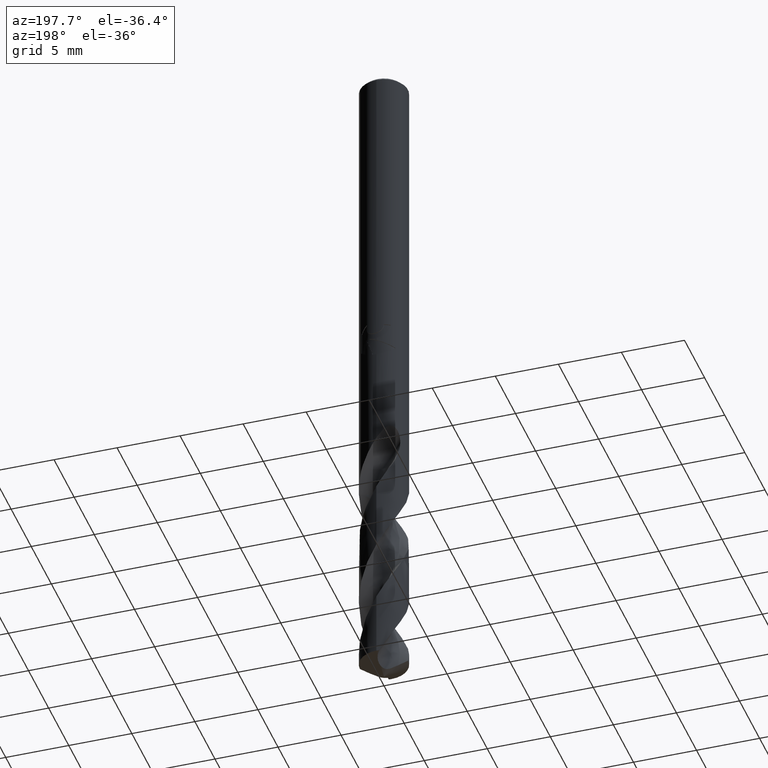
[diagram: clean part render]
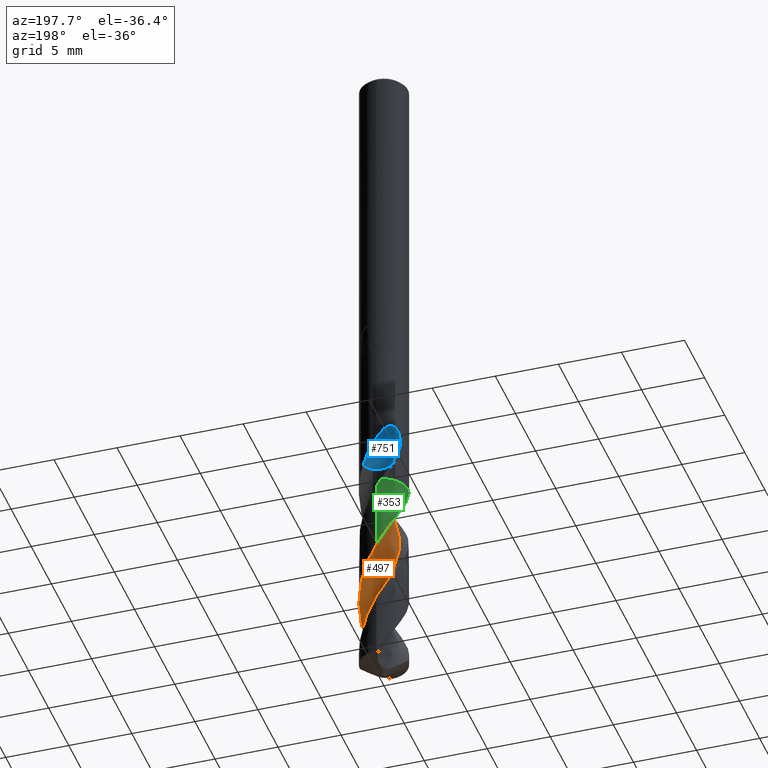
[diagram: same view with three faces highlighted in distinct colors, each labeled with its STEP entity id]
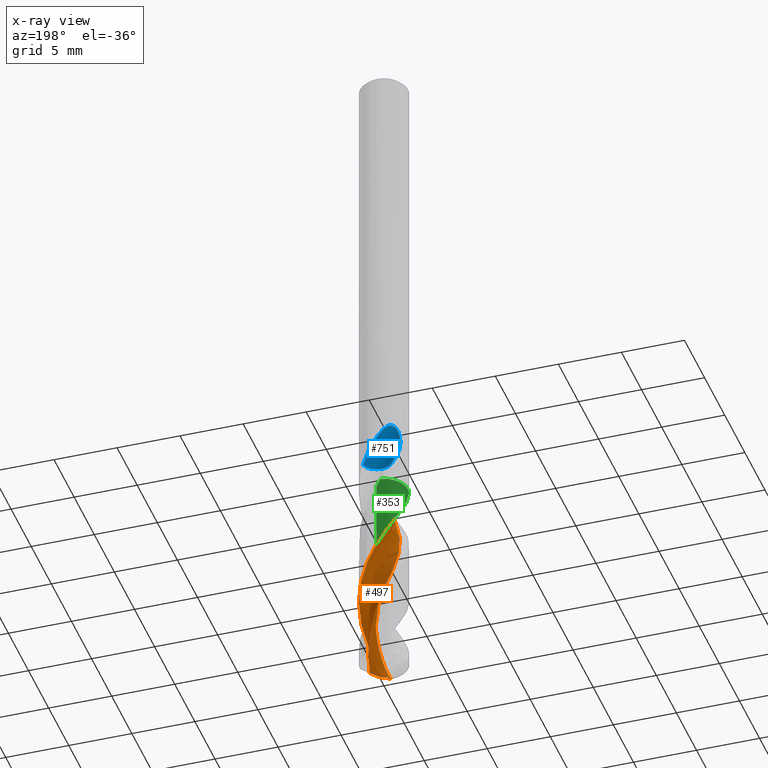
[diagram: x-ray of the same camera — body ghosted, the three highlighted faces saturated]
A machine part, auxiliary view with three faces highlighted in distinct colors.
The next image is the same camera in x-ray (body ghosted, the three faces saturated) — at least one of them is partly hidden behind the body in this view.
Their STEP definitions:

[orange] entity #497 — the highlighted face is a freeform B-spline surface patch.
#315=EDGE_CURVE('',#475,#341,#834,.T.);
#325=EDGE_CURVE('',#341,#715,#846,.T.);
#341=VERTEX_POINT('',#863);
#421=EDGE_CURVE('',#715,#745,#949,.T.);
#473=EDGE_CURVE('',#671,#475,#1005,.T.);
#475=VERTEX_POINT('',#1007);
#497=ADVANCED_FACE('',(#1033),#1034,.F.);
#595=VERTEX_POINT('',#1142);
#635=EDGE_CURVE('',#745,#721,#1187,.T.);
#671=VERTEX_POINT('',#1225);
#703=EDGE_CURVE('',#721,#595,#1259,.T.);
#715=VERTEX_POINT('',#1271);
#721=VERTEX_POINT('',#1278);
#745=VERTEX_POINT('',#1303);
#755=EDGE_CURVE('',#595,#671,#1314,.T.);
#834=B_SPLINE_CURVE_WITH_KNOTS('',3,(#2047,#2048,#2049,#2050,#2051,#2052,#2053,#2054,#2055,#2056,#2057,#2058,#2059,#2060,#2061,#2062,#2063,#2064,#2065,#2066,#2067,#2068),.UNSPECIFIED.,.F.,.F.,(4,2,2,2,2,2,2,2,2,2,4),(0.0,0.648995555786065,1.28108701576647,1.78660065546343,2.23669466562125,2.8115457183891,3.49005096596948,4.29610604498163,5.17115226037781,5.79731108288181,6.4193822084432),.UNSPECIFIED.);
#846=B_SPLINE_CURVE_WITH_KNOTS('',3,(#2085,#2086,#2087,#2088,#2089,#2090,#2091,#2092,#2093,#2094,#2095,#2096,#2097,#2098,#2099,#2100,#2101,#2102,#2103,#2104,#2105,#2106),.UNSPECIFIED.,.F.,.F.,(4,2,2,2,2,2,2,2,2,2,4),(0.0,0.648995555786065,1.28108701576647,1.78660065546343,2.23669466562125,2.8115457183891,3.49005096596948,4.29610604498163,5.17115226037781,5.79731108288181,6.4193822084432),.UNSPECIFIED.);
#863=CARTESIAN_POINT('',(1.63419041853947E-010,-1.58109835874864,-54.0499802614188));
#949=B_SPLINE_CURVE_WITH_KNOTS('',3,(#2977,#2978,#2979,#2980,#2981,#2982,#2983,#2984,#2985,#2986,#2987,#2988,#2989,#2990,#2991,#2992,#2993,#2994,#2995,#2996,#2997,#2998,#2999,#3000,#3001,#3002,#3003,#3004,#3005,#3006,#3007,#3008,#3009,#3010,#3011,#3012,#3013,#3014,#3015,#3016,#3017,#3018,#3019,#3020,#3021,#3022,#3023,#3024,#3025,#3026,#3027,#3028,#3029,#3030,#3031,#3032,#3033,#3034,#3035,#3036),.UNSPECIFIED.,.F.,.F.,(4,2,2,2,2,2,2,2,2,2,2,2,2,2,2,2,2,2,2,2,2,2,2,2,2,2,2,2,2,4),(0.0,0.170670605389074,0.852774257800548,1.19695858135245,1.8795934643111,2.56694814830175,3.24820844732213,3.93499056871376,4.61614547838824,5.30261512883003,5.98375213660271,6.71904365405354,7.04014812854611,7.71368537013039,8.08207039547673,8.72869355211635,9.41590151243351,10.0982130426988,10.7852308905936,11.4675647025436,12.1544266867432,12.8122777381498,13.5485010010752,14.1595007630117,14.6978058392708,15.5763403315261,16.3000819395205,16.8412240364562,17.6570362311026,18.4703976171029),.UNSPECIFIED.);
#1005=B_SPLINE_CURVE_WITH_KNOTS('',3,(#3286,#3287,#3288,#3289,#3290,#3291,#3292,#3293,#3294,#3295,#3296,#3297,#3298,#3299,#3300,#3301,#3302,#3303,#3304,#3305,#3306,#3307),.UNSPECIFIED.,.F.,.F.,(4,2,2,2,2,2,2,2,2,2,4),(0.0,0.648995555786065,1.28108701576647,1.78660065546343,2.23669466562125,2.8115457183891,3.49005096596948,4.29610604498163,5.17115226037781,5.79731108288181,6.4193822084432),.UNSPECIFIED.);
#1007=CARTESIAN_POINT('',(1.05684834083642E-011,-0.790333191509,-54.5251199093119));
#1033=FACE_OUTER_BOUND('',#3349,.T.);
#1034=B_SPLINE_SURFACE_WITH_KNOTS('',3,3,((#3350,#3351,#3352,#3353,#3354,#3355,#3356,#3357,#3358,#3359,#3360,#3361,#3362,#3363,#3364,#3365,#3366,#3367,#3368,#3369,#3370,#3371,#3372,#3373,#3374,#3375,#3376,#3377,#3378,#3379,#3380,#3381,#3382,#3383,#3384,#3385,#3386),(#3387,#3388,#3389,#3390,#3391,#3392,#3393,#3394,#3395,#3396,#3397,#3398,#3399,#3400,#3401,#3402,#3403,#3404,#3405,#3406,#3407,#3408,#3409,#3410,#3411,#3412,#3413,#3414,#3415,#3416,#3417,#3418,#3419,#3420,#3421,#3422,#3423),(#3424,#3425,#3426,#3427,#3428,#3429,#3430,#3431,#3432,#3433,#3434,#3435,#3436,#3437,#3438,#3439,#3440,#3441,#3442,#3443,#3444,#3445,#3446,#3447,#3448,#3449,#3450,#3451,#3452,#3453,#3454,#3455,#3456,#3457,#3458,#3459,#3460),(#3461,#3462,#3463,#3464,#3465,#3466,#3467,#3468,#3469,#3470,#3471,#3472,#3473,#3474,#3475,#3476,#3477,#3478,#3479,#3480,#3481,#3482,#3483,#3484,#3485,#3486,#3487,#3488,#3489,#3490,#3491,#3492,#3493,#3494,#3495,#3496,#3497),(#3498,#3499,#3500,#3501,#3502,#3503,#3504,#3505,#3506,#3507,#3508,#3509,#3510,#3511,#3512,#3513,#3514,#3515,#3516,#3517,#3518,#3519,#3520,#3521,#3522,#3523,#3524,#3525,#3526,#3527,#3528,#3529,#3530,#3531,#3532,#3533,#3534),(#3535,#3536,#3537,#3538,#3539,#3540,#3541,#3542,#3543,#3544,#3545,#3546,#3547,#3548,#3549,#3550,#3551,#3552,#3553,#3554,#3555,#3556,#3557,#3558,#3559,#3560,#3561,#3562,#3563,#3564,#3565,#3566,#3567,#3568,#3569,#3570,#3571),(#3572,#3573,#3574,#3575,#3576,#3577,#3578,#3579,#3580,#3581,#3582,#3583,#3584,#3585,#3586,#3587,#3588,#3589,#3590,#3591,#3592,#3593,#3594,#3595,#3596,#3597,#3598,#3599,#3600,#3601,#3602,#3603,#3604,#3605,#3606,#3607,#3608),(#3609,#3610,#3611,#3612,#3613,#3614,#3615,#3616,#3617,#3618,#3619,#3620,#3621,#3622,#3623,#3624,#3625,#3626,#3627,#3628,#3629,#3630,#3631,#3632,#3633,#3634,#3635,#3636,#3637,#3638,#3639,#3640,#3641,#3642,#3643,#3644,#3645),(#3646,#3647,#3648,#3649,#3650,#3651,#3652,#3653,#3654,#3655,#3656,#3657,#3658,#3659,#3660,#3661,#3662,#3663,#3664,#3665,#3666,#3667,#3668,#3669,#3670,#3671,#3672,#3673,#3674,#3675,#3676,#3677,#3678,#3679,#3680,#3681,#3682),(#3683,#3684,#3685,#3686,#3687,#3688,#3689,#3690,#3691,#3692,#3693,#3694,#3695,#3696,#3697,#3698,#3699,#3700,#3701,#3702,#3703,#3704,#3705,#3706,#3707,#3708,#3709,#3710,#3711,#3712,#3713,#3714,#3715,#3716,#3717,#3718,#3719),(#3720,#3721,#3722,#3723,#3724,#3725,#3726,#3727,#3728,#3729,#3730,#3731,#3732,#3733,#3734,#3735,#3736,#3737,#3738,#3739,#3740,#3741,#3742,#3743,#3744,#3745,#3746,#3747,#3748,#3749,#3750,#3751,#3752,#3753,#3754,#3755,#3756)),.UNSPECIFIED.,.F.,.F.,.F.,(4,1,1,1,1,1,1,1,4),(4,1,2,2,2,2,2,2,2,2,2,2,2,2,2,2,2,2,4),(9.52172959878501E-018,0.392702223103158,0.785404446206316,1.17810666930947,1.57080889241263,1.96351111551579,2.35621333861895,2.7489155617221,3.14161778482526),(0.0,0.383837207719708,0.767674415439416,1.53534883087883,3.07069766175766,4.60604649263649,6.14139532351532,7.67674415439415,9.21209298527299,10.7474418161518,12.2827906470306,13.8181394779095,15.3534883087883,16.8888371396671,18.424185970546,19.9595348014248,21.4948836323036,23.0302324631825,24.5655812940613),.UNSPECIFIED.);
#1142=CARTESIAN_POINT('',(0.170684274680195,-1.18356031584998,-37.805));
#1187=B_SPLINE_CURVE_WITH_KNOTS('',3,(#5844,#5845,#5846,#5847,#5848,#5849,#5850,#5851,#5852,#5853,#5854,#5855,#5856,#5857,#5858,#5859,#5860,#5861,#5862,#5863,#5864,#5865,#5866,#5867,#5868,#5869,#5870,#5871,#5872,#5873,#5874,#5875,#5876,#5877,#5878,#5879,#5880,#5881,#5882,#5883,#5884,#5885,#5886,#5887,#5888,#5889,#5890,#5891,#5892,#5893,#5894,#5895,#5896,#5897,#5898,#5899,#5900,#5901,#5902,#5903),.UNSPECIFIED.,.F.,.F.,(4,2,2,2,2,2,2,2,2,2,2,2,2,2,2,2,2,2,2,2,2,2,2,2,2,2,2,2,2,4),(0.0,0.170670605389074,0.852774257800548,1.19695858135245,1.8795934643111,2.56694814830175,3.24820844732213,3.93499056871376,4.61614547838824,5.30261512883003,5.98375213660271,6.71904365405354,7.04014812854611,7.71368537013039,8.08207039547673,8.72869355211635,9.41590151243351,10.0982130426988,10.7852308905936,11.4675647025436,12.1544266867432,12.8122777381498,13.5485010010752,14.1595007630117,14.6978058392708,15.5763403315261,16.3000819395205,16.8412240364562,17.6570362311026,18.4703976171029),.UNSPECIFIED.);
#1225=CARTESIAN_POINT('',(1.18596829223322,-0.169958667569456,-54.2801181380363));
#1259=B_SPLINE_CURVE_WITH_KNOTS('',3,(#6955,#6956,#6957,#6958,#6959,#6960,#6961,#6962,#6963,#6964,#6965,#6966,#6967,#6968,#6969,#6970,#6971,#6972,#6973,#6974),.UNSPECIFIED.,.F.,.F.,(4,2,2,2,2,2,2,2,2,4),(-3.9903097021408,-3.72646138403212,-3.46257304093479,-2.96757095189307,-2.47261435464062,-1.97786782331094,-1.48337325208529,-0.989023718243147,-0.494623482687413,-0.0),.UNSPECIFIED.);
#1271=CARTESIAN_POINT('',(0.212324220288702,-1.88809915668611,-53.8583648238476));
#1278=CARTESIAN_POINT('',(-1.83101245964173,-0.506964996111962,-37.805));
#1303=CARTESIAN_POINT('',(8.82841414939718E-016,1.89993781193416,-43.8719783339416));
#1314=B_SPLINE_CURVE_WITH_KNOTS('',3,(#7142,#7143,#7144,#7145,#7146,#7147,#7148,#7149,#7150,#7151,#7152,#7153,#7154,#7155,#7156,#7157,#7158,#7159,#7160,#7161,#7162,#7163,#7164,#7165,#7166,#7167,#7168,#7169,#7170,#7171,#7172,#7173,#7174,#7175,#7176,#7177,#7178),.UNSPECIFIED.,.F.,.F.,(4,1,2,2,2,2,2,2,2,2,2,2,2,2,2,2,2,2,4),(0.0,0.383837207719708,0.767674415439416,1.53534883087883,3.07069766175766,4.60604649263649,6.14139532351532,7.67674415439415,9.21209298527299,10.7474418161518,12.2827906470306,13.8181394779095,15.3534883087883,16.8888371396671,18.424185970546,19.9595348014248,21.4948836323036,23.0302324631825,24.5655812940613),.UNSPECIFIED.);
#2047=CARTESIAN_POINT('',(1.18596829222733,-0.169958667576496,-54.2801181380498));
#2048=CARTESIAN_POINT('',(1.00100612259739,-0.203119162287422,-54.3873041798426));
#2049=CARTESIAN_POINT('',(0.827145849565822,-0.253281212814921,-54.4844216841692));
#2050=CARTESIAN_POINT('',(0.536399405229499,-0.359633953199625,-54.6173142999266));
#2051=CARTESIAN_POINT('',(0.439054099551961,-0.406737631669641,-54.6439384836557));
#2052=CARTESIAN_POINT('',(0.30501303784116,-0.481358144725257,-54.6599786973714));
#2053=CARTESIAN_POINT('',(0.240061751581404,-0.52199967216929,-54.6580019696554));
#2054=CARTESIAN_POINT('',(0.117218744789877,-0.627694848081033,-54.6186224919089));
#2055=CARTESIAN_POINT('',(0.0686841183559738,-0.682520998228677,-54.5885779314658));
#2056=CARTESIAN_POINT('',(-0.0201607251750705,-0.816815885367484,-54.5100842143662));
#2057=CARTESIAN_POINT('',(-0.0593365021343477,-0.906133870725885,-54.4544251390869));
#2058=CARTESIAN_POINT('',(-0.104278941525389,-1.12921873065831,-54.3186673275364));
#2059=CARTESIAN_POINT('',(-0.100126243026824,-1.25423890472516,-54.2442641870293));
#2060=CARTESIAN_POINT('',(-0.0384039895409496,-1.52015748469137,-54.0866380378282));
#2061=CARTESIAN_POINT('',(0.0284944207175492,-1.65760673955608,-54.0051350275109));
#2062=CARTESIAN_POINT('',(0.220962019805863,-1.91310460543298,-53.8441400876809));
#2063=CARTESIAN_POINT('',(0.355600640924017,-2.0347623245261,-53.7617174355137));
#2064=CARTESIAN_POINT('',(0.643482975869421,-2.19953488918566,-53.6243072246574));
#2065=CARTESIAN_POINT('',(0.774453513153667,-2.25158560189739,-53.5709832783639));
#2066=CARTESIAN_POINT('',(1.0480043709358,-2.31956004471367,-53.4721520853469));
#2067=CARTESIAN_POINT('',(1.1898720775729,-2.33556395148074,-53.4268306326727));
#2068=CARTESIAN_POINT('',(1.33286337197628,-2.33312563563216,-53.3854840506031));
#2085=CARTESIAN_POINT('',(1.18596829222733,-0.169958667576496,-54.2801181380498));
#2086=CARTESIAN_POINT('',(1.00100612259739,-0.203119162287422,-54.3873041798426));
#2087=CARTESIAN_POINT('',(0.827145849565822,-0.253281212814921,-54.4844216841692));
#2088=CARTESIAN_POINT('',(0.536399405229499,-0.359633953199625,-54.6173142999266));
#2089=CARTESIAN_POINT('',(0.439054099551961,-0.406737631669641,-54.6439384836557));
#2090=CARTESIAN_POINT('',(0.30501303784116,-0.481358144725257,-54.6599786973714));
#2091=CARTESIAN_POINT('',(0.240061751581404,-0.52199967216929,-54.6580019696554));
#2092=CARTESIAN_POINT('',(0.117218744789877,-0.627694848081033,-54.6186224919089));
#2093=CARTESIAN_POINT('',(0.0686841183559738,-0.682520998228677,-54.5885779314658));
#2094=CARTESIAN_POINT('',(-0.0201607251750705,-0.816815885367484,-54.5100842143662));
#2095=CARTESIAN_POINT('',(-0.0593365021343477,-0.906133870725885,-54.4544251390869));
#2096=CARTESIAN_POINT('',(-0.104278941525389,-1.12921873065831,-54.3186673275364));
#2097=CARTESIAN_POINT('',(-0.100126243026824,-1.25423890472516,-54.2442641870293));
#2098=CARTESIAN_POINT('',(-0.0384039895409496,-1.52015748469137,-54.0866380378282));
#2099=CARTESIAN_POINT('',(0.0284944207175492,-1.65760673955608,-54.0051350275109));
#2100=CARTESIAN_POINT('',(0.220962019805863,-1.91310460543298,-53.8441400876809));
#2101=CARTESIAN_POINT('',(0.355600640924017,-2.0347623245261,-53.7617174355137));
#2102=CARTESIAN_POINT('',(0.643482975869421,-2.19953488918566,-53.6243072246574));
#2103=CARTESIAN_POINT('',(0.774453513153667,-2.25158560189739,-53.5709832783639));
#2104=CARTESIAN_POINT('',(1.0480043709358,-2.31956004471367,-53.4721520853469));
#2105=CARTESIAN_POINT('',(1.1898720775729,-2.33556395148074,-53.4268306326727));
#2106=CARTESIAN_POINT('',(1.33286337197628,-2.33312563563216,-53.3854840506031));
#2977=CARTESIAN_POINT('',(0.212324220288704,-1.88809915668611,-53.8583648238476));
#2978=CARTESIAN_POINT('',(0.240420704532934,-1.8849392865114,-53.8089978525609));
#2979=CARTESIAN_POINT('',(0.268411805155769,-1.88115879292184,-53.7595576703096));
#2980=CARTESIAN_POINT('',(0.408497361606869,-1.85902934229855,-53.5120721226325));
#2981=CARTESIAN_POINT('',(0.51903685500338,-1.83128515159002,-53.315433514511));
#2982=CARTESIAN_POINT('',(0.68109254248057,-1.77465700271535,-53.0182647272398));
#2983=CARTESIAN_POINT('',(0.734509539005171,-1.75321933451758,-52.9187480065962));
#2984=CARTESIAN_POINT('',(0.890609334357078,-1.68219635784933,-52.6212811517244));
#2985=CARTESIAN_POINT('',(0.989983073086763,-1.62571290950974,-52.4227555191835));
#2986=CARTESIAN_POINT('',(1.17823704000143,-1.49497090867245,-52.025842011882));
#2987=CARTESIAN_POINT('',(1.26646398445852,-1.42098590010085,-51.8278453262774));
#2988=CARTESIAN_POINT('',(1.42762809605504,-1.25887564970704,-51.4311567466317));
#2989=CARTESIAN_POINT('',(1.5004896885492,-1.17109571038345,-51.2327523948512));
#2990=CARTESIAN_POINT('',(1.63027786403843,-0.982512445587693,-50.8361392014194));
#2991=CARTESIAN_POINT('',(1.68667534210086,-0.882172213379456,-50.638224589212));
#2992=CARTESIAN_POINT('',(1.7802305125851,-0.673540197715337,-50.2415461919549));
#2993=CARTESIAN_POINT('',(1.81740253284222,-0.565650138289542,-50.0431044909664));
#2994=CARTESIAN_POINT('',(1.87221987721971,-0.34336436119568,-49.646450656946));
#2995=CARTESIAN_POINT('',(1.88954153056088,-0.229577288471107,-49.4485338250866));
#2996=CARTESIAN_POINT('',(1.90338065223852,-0.00130347280225888,-49.0517977775559));
#2997=CARTESIAN_POINT('',(1.9000444183261,0.112794192863608,-48.8532859677748));
#2998=CARTESIAN_POINT('',(1.87182284500394,0.348298407064515,-48.4423306898084));
#2999=CARTESIAN_POINT('',(1.84533241999327,0.468752633647806,-48.2304475150829));
#3000=CARTESIAN_POINT('',(1.79088173639982,0.636776693076591,-47.923841870863));
#3001=CARTESIAN_POINT('',(1.77220323812463,0.687033091425265,-47.8303968950096));
#3002=CARTESIAN_POINT('',(1.70798489394986,0.839778410843935,-47.5420998998605));
#3003=CARTESIAN_POINT('',(1.65534204528288,0.939350843258449,-47.3480465157791));
#3004=CARTESIAN_POINT('',(1.56050993288496,1.0855616531926,-47.04653210332));
#3005=CARTESIAN_POINT('',(1.52452495905853,1.13553457305249,-46.9400829128366));
#3006=CARTESIAN_POINT('',(1.4190083470726,1.26802499849308,-46.6461289901269));
#3007=CARTESIAN_POINT('',(1.34468319834682,1.34660278845187,-46.4579830662696));
#3008=CARTESIAN_POINT('',(1.17818861964453,1.49495401569273,-46.0715838173575));
#3009=CARTESIAN_POINT('',(1.08568344215273,1.56341931000439,-45.8736914668217));
#3010=CARTESIAN_POINT('',(0.890250180185487,1.68233367402662,-45.4768992820044));
#3011=CARTESIAN_POINT('',(0.787772400171191,1.73269399262661,-45.2782951363152));
#3012=CARTESIAN_POINT('',(0.574027677843445,1.81479388705641,-44.8815225634958));
#3013=CARTESIAN_POINT('',(0.463306862873774,1.84615997850043,-44.683641433961));
#3014=CARTESIAN_POINT('',(0.23843334483452,1.88836463593436,-44.2868232392278));
#3015=CARTESIAN_POINT('',(0.124753784380653,1.89926976115308,-44.0881754254321));
#3016=CARTESIAN_POINT('',(-0.104213176339849,1.90055064225688,-43.6913740644828));
#3017=CARTESIAN_POINT('',(-0.218867060844382,1.89077460563947,-43.4935055954337));
#3018=CARTESIAN_POINT('',(-0.440142184986285,1.85151490883801,-43.1037772110065));
#3019=CARTESIAN_POINT('',(-0.54644921445977,1.82297332323243,-42.9122435162017));
#3020=CARTESIAN_POINT('',(-0.765472959933663,1.74325391301528,-42.5081888412528));
#3021=CARTESIAN_POINT('',(-0.876731943098919,1.69002952508474,-42.2962959315356));
#3022=CARTESIAN_POINT('',(-1.06943207910385,1.57367550397221,-41.9058142440806));
#3023=CARTESIAN_POINT('',(-1.1523719443946,1.51399584051412,-41.7279212735468));
#3024=CARTESIAN_POINT('',(-1.29877691000552,1.38959728002561,-41.3947782174377));
#3025=CARTESIAN_POINT('',(-1.36316614745923,1.32649846768282,-41.2393503784879));
#3026=CARTESIAN_POINT('',(-1.52032092135203,1.1488866912841,-40.8288882118274));
#3027=CARTESIAN_POINT('',(-1.60454976181475,1.02794736663545,-40.5733129662428));
#3028=CARTESIAN_POINT('',(-1.73122740090854,0.791937496366005,-40.109007319106));
#3029=CARTESIAN_POINT('',(-1.77811551800787,0.680141412633165,-39.9006539134736));
#3030=CARTESIAN_POINT('',(-1.84091752986172,0.478388599475797,-39.534093666054));
#3031=CARTESIAN_POINT('',(-1.86156638911875,0.390379994485989,-39.376613274933));
#3032=CARTESIAN_POINT('',(-1.89748652719645,0.166608636264592,-38.983380914783));
#3033=CARTESIAN_POINT('',(-1.90454917838818,0.0301445207843186,-38.7490845865194));
#3034=CARTESIAN_POINT('',(-1.88937185800374,-0.241593980913899,-38.2771605310573));
#3035=CARTESIAN_POINT('',(-1.86727360672882,-0.376016245922076,-38.0405649795331));
#3036=CARTESIAN_POINT('',(-1.83100186269568,-0.507003259839913,-37.804931164007));
#3286=CARTESIAN_POINT('',(1.18596829222733,-0.169958667576496,-54.2801181380498));
#3287=CARTESIAN_POINT('',(1.00100612259739,-0.203119162287422,-54.3873041798426));
#3288=CARTESIAN_POINT('',(0.827145849565822,-0.253281212814921,-54.4844216841692));
#3289=CARTESIAN_POINT('',(0.536399405229499,-0.359633953199625,-54.6173142999266));
#3290=CARTESIAN_POINT('',(0.439054099551961,-0.406737631669641,-54.6439384836557));
#3291=CARTESIAN_POINT('',(0.30501303784116,-0.481358144725257,-54.6599786973714));
#3292=CARTESIAN_POINT('',(0.240061751581404,-0.52199967216929,-54.6580019696554));
#3293=CARTESIAN_POINT('',(0.117218744789877,-0.627694848081033,-54.6186224919089));
#3294=CARTESIAN_POINT('',(0.0686841183559738,-0.682520998228677,-54.5885779314658));
#3295=CARTESIAN_POINT('',(-0.0201607251750705,-0.816815885367484,-54.5100842143662));
#3296=CARTESIAN_POINT('',(-0.0593365021343477,-0.906133870725885,-54.4544251390869));
#3297=CARTESIAN_POINT('',(-0.104278941525389,-1.12921873065831,-54.3186673275364));
#3298=CARTESIAN_POINT('',(-0.100126243026824,-1.25423890472516,-54.2442641870293));
#3299=CARTESIAN_POINT('',(-0.0384039895409496,-1.52015748469137,-54.0866380378282));
#3300=CARTESIAN_POINT('',(0.0284944207175492,-1.65760673955608,-54.0051350275109));
#3301=CARTESIAN_POINT('',(0.220962019805863,-1.91310460543298,-53.8441400876809));
#3302=CARTESIAN_POINT('',(0.355600640924017,-2.0347623245261,-53.7617174355137));
#3303=CARTESIAN_POINT('',(0.643482975869421,-2.19953488918566,-53.6243072246574));
#3304=CARTESIAN_POINT('',(0.774453513153667,-2.25158560189739,-53.5709832783639));
#3305=CARTESIAN_POINT('',(1.0480043709358,-2.31956004471367,-53.4721520853469));
#3306=CARTESIAN_POINT('',(1.1898720775729,-2.33556395148074,-53.4268306326727));
#3307=CARTESIAN_POINT('',(1.33286337197628,-2.33312563563216,-53.3854840506031));
#3349=EDGE_LOOP('',(#7467,#7468,#7469,#7470,#7471,#7472,#7473));
#3350=CARTESIAN_POINT('',(-0.895668591789273,-2.73233526178927,-35.8778));
#3351=CARTESIAN_POINT('',(-0.975905716475053,-2.72864925329124,-35.9773223108312));
#3352=CARTESIAN_POINT('',(-1.13817599417616,-2.70450807296176,-36.177419970582));
#3353=CARTESIAN_POINT('',(-1.29988236017181,-2.63693412190102,-36.3780727410782));
#3354=CARTESIAN_POINT('',(-1.53435555777514,-2.49622952221583,-36.6761128931226));
#3355=CARTESIAN_POINT('',(-1.68080491104869,-2.3929831937363,-36.8740704632061));
#3356=CARTESIAN_POINT('',(-2.0958755038901,-2.0656238277486,-37.4723779448238));
#3357=CARTESIAN_POINT('',(-2.33299769014286,-1.79645478494227,-37.871243411266));
#3358=CARTESIAN_POINT('',(-2.69212605661799,-1.18680656246737,-38.6679796329753));
#3359=CARTESIAN_POINT('',(-2.81849508905002,-0.851655828727016,-39.0664300130494));
#3360=CARTESIAN_POINT('',(-2.93816142873201,-0.154180171105367,-39.8635132080957));
#3361=CARTESIAN_POINT('',(-2.93729325659986,0.203955410402278,-40.2620248492248));
#3362=CARTESIAN_POINT('',(-2.80165360448709,0.8984331776323,-41.0589964261245));
#3363=CARTESIAN_POINT('',(-2.67379463578258,1.23297815103738,-41.457490864251));
#3364=CARTESIAN_POINT('',(-2.30052774959605,1.83414887969895,-42.2544879937811));
#3365=CARTESIAN_POINT('',(-2.06226269442306,2.10154043070436,-42.6529847178631));
#3366=CARTESIAN_POINT('',(-1.4999641536006,2.53113109705203,-43.4499764021659));
#3367=CARTESIAN_POINT('',(-1.18232093265001,2.69657559723512,-43.8484731506923));
#3368=CARTESIAN_POINT('',(-0.504170300161317,2.89867182316195,-44.6454669321008));
#3369=CARTESIAN_POINT('',(-0.148490728207043,2.94063000626592,-45.0439635986428));
#3370=CARTESIAN_POINT('',(0.557238499228008,2.88893386125672,-45.8409578582063));
#3371=CARTESIAN_POINT('',(0.904659117532561,2.80194992906831,-46.2394547282522));
#3372=CARTESIAN_POINT('',(1.54611624085833,2.50319329617289,-47.0364482216913));
#3373=CARTESIAN_POINT('',(1.84006180702021,2.29858865160455,-47.4349449071697));
#3374=CARTESIAN_POINT('',(2.33376091741818,1.79165134141027,-48.2319382665515));
#3375=CARTESIAN_POINT('',(2.53597504945458,1.49605690127136,-48.6304352521807));
#3376=CARTESIAN_POINT('',(2.81766639053503,0.846928746338723,-49.4274279682224));
#3377=CARTESIAN_POINT('',(2.90182429322726,0.498812219046876,-49.8259214804271));
#3378=CARTESIAN_POINT('',(2.93482379398918,-0.208053198225621,-50.6229101369328));
#3379=CARTESIAN_POINT('',(2.88999495629585,-0.563391544270877,-51.0214214561823));
#3380=CARTESIAN_POINT('',(2.6700043855993,-1.23591508490305,-51.818429292018));
#3381=CARTESIAN_POINT('',(2.50195785367507,-1.55212651739908,-52.2168631808889));
#3382=CARTESIAN_POINT('',(2.05786172021052,-2.10309652470225,-53.0138346343043));
#3383=CARTESIAN_POINT('',(1.78843322115885,-2.33948479735488,-53.4125793113272));
#3384=CARTESIAN_POINT('',(1.17643880915455,-2.69526666014928,-54.2095762248167));
#3385=CARTESIAN_POINT('',(0.841882674038793,-2.81994101021044,-54.6073492092264));
#3386=CARTESIAN_POINT('',(0.495043193767897,-2.88197516204289,-55.0056970629159));
#3387=CARTESIAN_POINT('',(-1.01290788510906,-2.61508719057958,-35.8778000000001));
#3388=CARTESIAN_POINT('',(-1.09326028712847,-2.61151645067589,-35.9773256892165));
#3389=CARTESIAN_POINT('',(-1.25356570326039,-2.58534631116472,-36.1775460959856));
#3390=CARTESIAN_POINT('',(-1.4084972383083,-2.51150090444348,-36.3783765162733));
#3391=CARTESIAN_POINT('',(-1.62843664362552,-2.3591340934764,-36.6762868999443));
#3392=CARTESIAN_POINT('',(-1.76552107461237,-2.25011713308578,-36.8740719612696));
#3393=CARTESIAN_POINT('',(-2.1545609145087,-1.90932456047233,-37.4724651920291));
#3394=CARTESIAN_POINT('',(-2.3724460275616,-1.63413524021151,-37.8713763979116));
#3395=CARTESIAN_POINT('',(-2.69127518025739,-1.0197648603241,-38.6680778588274));
#3396=CARTESIAN_POINT('',(-2.79775812708472,-0.685905808606725,-39.0665214632777));
#3397=CARTESIAN_POINT('',(-2.87810688542117,0.00169279146583664,-39.8636169037387));
#3398=CARTESIAN_POINT('',(-2.85908971401898,0.351560720021554,-40.2621307270543));
#3399=CARTESIAN_POINT('',(-2.69019471654616,1.02285133620397,-41.0590993645785));
#3400=CARTESIAN_POINT('',(-2.54830530840596,1.34323076058333,-41.4575934743525));
#3401=CARTESIAN_POINT('',(-2.15217231762462,1.91091940735638,-42.2545911274961));
#3402=CARTESIAN_POINT('',(-1.90581598508924,2.1600862458456,-42.65308787558));
#3403=CARTESIAN_POINT('',(-1.33402114593047,2.55026073681328,-43.4500793456773));
#3404=CARTESIAN_POINT('',(-1.01528023971225,2.69579582435406,-43.8485761150508));
#3405=CARTESIAN_POINT('',(-0.342238439788417,2.85767043839639,-44.6455699678611));
#3406=CARTESIAN_POINT('',(0.00740226466835185,2.88062537387489,-45.0440666443053));
#3407=CARTESIAN_POINT('',(0.694082772100575,2.79313894579268,-45.8410610466725));
#3408=CARTESIAN_POINT('',(1.02911440317767,2.69053155511119,-46.2395579467966));
#3409=CARTESIAN_POINT('',(1.64006262299327,2.36507346207953,-47.0365514878369));
#3410=CARTESIAN_POINT('',(1.9168814612542,2.15025820892126,-47.4350482104404));
#3411=CARTESIAN_POINT('',(2.37258170485544,1.62918298424854,-48.232041522221));
#3412=CARTESIAN_POINT('',(2.55516089166402,1.33011999131317,-48.6305384855502));
#3413=CARTESIAN_POINT('',(2.79631061568393,0.681257608887465,-49.4275313443955));
#3414=CARTESIAN_POINT('',(2.86087872962239,0.336865681450732,-49.826024741803));
#3415=CARTESIAN_POINT('',(2.85606642449614,-0.355363534709399,-50.6230119226708));
#3416=CARTESIAN_POINT('',(2.79424797006042,-0.700270240484676,-51.0215241151333));
#3417=CARTESIAN_POINT('',(2.54409838269788,-1.34569112001737,-51.8185371633029));
#3418=CARTESIAN_POINT('',(2.36386721171663,-1.64611206504867,-52.2169666938576));
#3419=CARTESIAN_POINT('',(1.90121071259036,-2.16108456627697,-53.013922391268));
#3420=CARTESIAN_POINT('',(1.62596752391084,-2.37838736087024,-53.4126844864102));
#3421=CARTESIAN_POINT('',(1.00938900399271,-2.69362163265054,-54.2097120550877));
#3422=CARTESIAN_POINT('',(0.676278332681134,-2.79858818535343,-54.6074316148002));
#3423=CARTESIAN_POINT('',(0.334250645901932,-2.84150407030778,-55.0057939392617));
#3424=CARTESIAN_POINT('',(-1.2007116653887,-2.33401850104999,-35.8778));
#3425=CARTESIAN_POINT('',(-1.2813404104049,-2.33063240784444,-35.9773312459444));
#3426=CARTESIAN_POINT('',(-1.43691008279762,-2.3011865745688,-36.177753532014));
#3427=CARTESIAN_POINT('',(-1.5758009878231,-2.21749483435871,-36.3788761284763));
#3428=CARTESIAN_POINT('',(-1.76204118120849,-2.04758820351263,-36.6765730867461));
#3429=CARTESIAN_POINT('',(-1.87810492275594,-1.9307565641697,-36.8740744250949));
#3430=CARTESIAN_POINT('',(-2.20975231234024,-1.5734547228676,-37.4726086857489));
#3431=CARTESIAN_POINT('',(-2.38677732446667,-1.29387726519624,-37.8715951080853));
#3432=CARTESIAN_POINT('',(-2.62314719293118,-0.686090165126728,-38.6682394191318));
#3433=CARTESIAN_POINT('',(-2.6903799927879,-0.362721922119088,-39.0666718697633));
#3434=CARTESIAN_POINT('',(-2.69603790475132,0.289491504658039,-39.863787449688));
#3435=CARTESIAN_POINT('',(-2.64401812698358,0.615610396918647,-40.2623048609917));
#3436=CARTESIAN_POINT('',(-2.41784715721049,1.22731199034236,-41.0592686665252));
#3437=CARTESIAN_POINT('',(-2.25353592178397,1.51378687816478,-41.4577622363439));
#3438=CARTESIAN_POINT('',(-1.82499498409319,2.005432403916,-42.254760748164));
#3439=CARTESIAN_POINT('',(-1.56970683247788,2.21493987557613,-42.653257529624));
#3440=CARTESIAN_POINT('',(-0.994597823445391,2.52252228133261,-43.4502486621208));
#3441=CARTESIAN_POINT('',(-0.681579276755368,2.62781040318552,-43.8487454519268));
#3442=CARTESIAN_POINT('',(-0.03474771173951,2.71129034675582,-44.6457394351845));
#3443=CARTESIAN_POINT('',(0.2952608814239,2.69864822569123,-45.0442361240399));
#3444=CARTESIAN_POINT('',(0.929619433607971,2.54717130766898,-45.8412307560014));
#3445=CARTESIAN_POINT('',(1.23366540993855,2.41825024358401,-46.2397276948367));
#3446=CARTESIAN_POINT('',(1.77299043784189,2.05153278518285,-47.0367213409515));
#3447=CARTESIAN_POINT('',(2.01150265632044,1.8231113097559,-47.4352181037322));
#3448=CARTESIAN_POINT('',(2.38559897082979,1.28887702457048,-48.2322113522119));
#3449=CARTESIAN_POINT('',(2.52753721979193,0.990686506494488,-48.6307082494297));
#3450=CARTESIAN_POINT('',(2.68772650235621,0.358477535805104,-49.4277013870067));
#3451=CARTESIAN_POINT('',(2.71460442167306,0.0293234086608489,-49.8261945864856));
#3452=CARTESIAN_POINT('',(2.64000471053883,-0.61860315194801,-50.6231793147983));
#3453=CARTESIAN_POINT('',(2.54836249104078,-0.935894791946058,-51.0216929597534));
#3454=CARTESIAN_POINT('',(2.2486853203964,-1.51512859066259,-51.8187145734697));
#3455=CARTESIAN_POINT('',(2.050369336659,-1.77912980968599,-52.2171369018851));
#3456=CARTESIAN_POINT('',(1.56491486193783,-2.21474163931097,-53.0140667609989));
#3457=CARTESIAN_POINT('',(1.28563435370612,-2.39156922803082,-53.4128575111899));
#3458=CARTESIAN_POINT('',(0.676013893852347,-2.62390244715149,-54.2099354069133));
#3459=CARTESIAN_POINT('',(0.353630657860913,-2.69003651265569,-54.6075671491117));
#3460=CARTESIAN_POINT('',(0.0288271850213166,-2.6966373996111,-55.0059532698122));
#3461=CARTESIAN_POINT('',(-1.29964640160893,-1.8366667533452,-35.8778000000001));
#3462=CARTESIAN_POINT('',(-1.38076413778094,-1.83337793171088,-35.9773347144766));
#3463=CARTESIAN_POINT('',(-1.5278899450871,-1.80211081854776,-36.1778830265657));
#3464=CARTESIAN_POINT('',(-1.63889771370488,-1.71398047273963,-36.3791880175088));
#3465=CARTESIAN_POINT('',(-1.76836394666653,-1.53911028042444,-36.676751742109));
#3466=CARTESIAN_POINT('',(-1.85080829992616,-1.42351516472307,-36.8740759644102));
#3467=CARTESIAN_POINT('',(-2.09343643508814,-1.07627894592147,-37.4726982609464));
#3468=CARTESIAN_POINT('',(-2.21131309883094,-0.814075645096751,-37.8717316443387));
#3469=CARTESIAN_POINT('',(-2.33717908644992,-0.262748652368734,-38.6683402713048));
#3470=CARTESIAN_POINT('',(-2.35603612499987,0.0235483191166071,-39.0667657656022));
#3471=CARTESIAN_POINT('',(-2.27849055405084,0.583843719208637,-39.863893912273));
#3472=CARTESIAN_POINT('',(-2.19436461372386,0.858102766826225,-40.262413572572));
#3473=CARTESIAN_POINT('',(-1.92302031844786,1.35433848406969,-41.0593743489319));
#3474=CARTESIAN_POINT('',(-1.74709697661176,1.58095261793132,-41.457867589096));
#3475=CARTESIAN_POINT('',(-1.3172936653115,1.94860360321416,-42.254866634863));
#3476=CARTESIAN_POINT('',(-1.07239323289288,2.09801851318125,-42.6533634430129));
#3477=CARTESIAN_POINT('',(-0.540103322495085,2.28923132686484,-43.4503543551417));
#3478=CARTESIAN_POINT('',(-0.258119517598191,2.34202481812452,-43.8488511620384));
#3479=CARTESIAN_POINT('',(0.307383659478826,2.3319011064819,-44.6458452276705));
#3480=CARTESIAN_POINT('',(0.589748831152416,2.28119375833807,-45.0443419325417));
#3481=CARTESIAN_POINT('',(1.11485868055463,2.07106595954267,-45.8413366903601));
#3482=CARTESIAN_POINT('',(1.3608551557738,1.92346335232352,-46.2398336723287));
#3483=CARTESIAN_POINT('',(1.77723015777574,1.54067877508312,-47.0368273635716));
#3484=CARTESIAN_POINT('',(1.95484125335573,1.31539006222285,-47.4353241652849));
#3485=CARTESIAN_POINT('',(2.208286047023,0.809763259884687,-48.2323173670092));
#3486=CARTESIAN_POINT('',(2.29439952980942,0.536112031086897,-48.6308142281356));
#3487=CARTESIAN_POINT('',(2.35194302819225,-0.026540768587233,-49.4278075365978));
#3488=CARTESIAN_POINT('',(2.33533220011077,-0.312940123623794,-49.8263006132528));
#3489=CARTESIAN_POINT('',(2.18944397277359,-0.859404442129798,-50.6232838121717));
#3490=CARTESIAN_POINT('',(2.07232054651483,-1.12130301192101,-51.0217983491183));
#3491=CARTESIAN_POINT('',(1.74199645334371,-1.58037446931325,-51.8188253378228));
#3492=CARTESIAN_POINT('',(1.53952302020938,-1.78351872906958,-52.2172431814322));
#3493=CARTESIAN_POINT('',(1.06802941501805,-2.09605474778344,-53.0141568604078));
#3494=CARTESIAN_POINT('',(0.8063883942901,-2.21446879472502,-53.4129655049835));
#3495=CARTESIAN_POINT('',(0.254000963680717,-2.33590103718532,-54.2100748559833));
#3496=CARTESIAN_POINT('',(-0.0312227500177595,-2.35437402429717,-54.6076517567761));
#3497=CARTESIAN_POINT('',(-0.311307867082365,-2.3205323884591,-55.0060527338249));
#3498=CARTESIAN_POINT('',(-1.20072034316448,-1.33931327950963,-35.8778));
#3499=CARTESIAN_POINT('',(-1.28232707185165,-1.33592719481577,-35.9773327881382));
#3500=CARTESIAN_POINT('',(-1.42095476569765,-1.30620882049769,-36.1778111169427));
#3501=CARTESIAN_POINT('',(-1.50450387639308,-1.22464799047074,-36.3790148220905));
#3502=CARTESIAN_POINT('',(-1.57961797843817,-1.06691882412547,-36.6766525328635));
#3503=CARTESIAN_POINT('',(-1.63147518641181,-0.965331877173501,-36.8740751095932));
#3504=CARTESIAN_POINT('',(-1.795712361403,-0.66146149574583,-37.4726485188931));
#3505=CARTESIAN_POINT('',(-1.86559204779999,-0.437945000379762,-37.8716558271714));
#3506=CARTESIAN_POINT('',(-1.91097236433731,0.0189313653209173,-38.6682842640768));
#3507=CARTESIAN_POINT('',(-1.89932274728465,0.252466248765263,-39.0667136265464));
#3508=CARTESIAN_POINT('',(-1.78008304279793,0.69599975072003,-39.8638347900997));
#3509=CARTESIAN_POINT('',(-1.6861409582709,0.910060027058223,-40.2623532044867));
#3510=CARTESIAN_POINT('',(-1.41724920534129,1.28233210755213,-41.0593156616844));
#3511=CARTESIAN_POINT('',(-1.25350556995903,1.44919839096895,-41.4578090848954));
#3512=CARTESIAN_POINT('',(-0.869986988964546,1.70181040177198,-42.2548078354792));
#3513=CARTESIAN_POINT('',(-0.657680138352745,1.7996823296057,-42.6533046294658));
#3514=CARTESIAN_POINT('',(-0.209482904236066,1.89977007456667,-43.4502956613288));
#3515=CARTESIAN_POINT('',(0.0237396015036031,1.91594147355367,-43.848792466019));
#3516=CARTESIAN_POINT('',(0.478284406245218,1.85046262653913,-44.6457864739772));
#3517=CARTESIAN_POINT('',(0.702065812122823,1.7828201143961,-45.0442831706215));
#3518=CARTESIAN_POINT('',(1.10379826532395,1.56031400873763,-45.841277869148));
#3519=CARTESIAN_POINT('',(1.28901488954099,1.4176666750491,-46.2397748311221));
#3520=CARTESIAN_POINT('',(1.5856503545976,1.06708930528688,-47.0367684787913));
#3521=CARTESIAN_POINT('',(1.708195088474,0.868000907117327,-47.4352652740917));
#3522=CARTESIAN_POINT('',(1.86112022778934,0.434975617971727,-48.2322584898798));
#3523=CARTESIAN_POINT('',(1.90504926723237,0.205359073317504,-48.6307553829564));
#3524=CARTESIAN_POINT('',(1.89437873320647,-0.253751152101128,-49.4277485846073));
#3525=CARTESIAN_POINT('',(1.85395125328904,-0.484007753888229,-49.8262417393891));
#3526=CARTESIAN_POINT('',(1.68102930502359,-0.90945216549541,-50.62322577967));
#3527=CARTESIAN_POINT('',(1.56156251067721,-1.11042297021075,-51.0217398259333));
#3528=CARTESIAN_POINT('',(1.24890885387809,-1.44675088484606,-51.8187638284787));
#3529=CARTESIAN_POINT('',(1.06588356359994,-1.59207971329402,-52.2171841539567));
#3530=CARTESIAN_POINT('',(0.654387537349874,-1.79625126351009,-53.0141068364923));
#3531=CARTESIAN_POINT('',(0.431397301601509,-1.86744871023203,-53.4129055415228));
#3532=CARTESIAN_POINT('',(-0.0256735353178064,-1.9083242484064,-54.2099974117043));
#3533=CARTESIAN_POINT('',(-0.258327064422944,-1.89698459322164,-54.6076047719351));
#3534=CARTESIAN_POINT('',(-0.481621080906004,-1.84289209585207,-55.0059975003662));
#3535=CARTESIAN_POINT('',(-0.918994323537312,-0.917676833219005,-35.8778));
#3536=CARTESIAN_POINT('',(-1.00101560053395,-0.91401375884319,-35.9773257603724));
#3537=CARTESIAN_POINT('',(-1.13238471340629,-0.888978355805353,-36.1775487508467));
#3538=CARTESIAN_POINT('',(-1.19308004222223,-0.823994999872415,-36.3783829100184));
#3539=CARTESIAN_POINT('',(-1.22453859349076,-0.702901836347332,-36.6762905630609));
#3540=CARTESIAN_POINT('',(-1.25349758685779,-0.625962051517383,-36.8740719922382));
#3541=CARTESIAN_POINT('',(-1.36190660041235,-0.392155573592287,-37.4724670295789));
#3542=CARTESIAN_POINT('',(-1.40224790223583,-0.222748719276531,-37.8713791944502));
#3543=CARTESIAN_POINT('',(-1.40941415762374,0.116065984291182,-38.6680799289644));
#3544=CARTESIAN_POINT('',(-1.38977142953513,0.289180633139277,-39.0665233898962));
#3545=CARTESIAN_POINT('',(-1.2766945946838,0.608884594079369,-39.8636190846482));
#3546=CARTESIAN_POINT('',(-1.1967208316896,0.763572033693043,-40.2621329533101));
#3547=CARTESIAN_POINT('',(-0.977534096439231,1.02225534912463,-41.0591015335925));
#3548=CARTESIAN_POINT('',(-0.847907712091165,1.13858289851355,-41.4575956322241));
#3549=CARTESIAN_POINT('',(-0.551174410897835,1.3026254229421,-42.254593300223));
#3550=CARTESIAN_POINT('',(-0.388704851906079,1.36535102481616,-42.653090043408));
#3551=CARTESIAN_POINT('',(-0.0530713285102093,1.41343140288142,-43.4500815159706));
#3552=CARTESIAN_POINT('',(0.121086906146631,1.41442872484583,-43.8485782829215));
#3553=CARTESIAN_POINT('',(0.45193602907569,1.34027070461887,-44.6455721359857));
#3554=CARTESIAN_POINT('',(0.615112315709447,1.27940136347801,-45.0440688124008));
#3555=CARTESIAN_POINT('',(0.898122058846008,1.0926740359733,-45.8410632194942));
#3556=CARTESIAN_POINT('',(1.02908181233607,0.977864378431278,-46.2395601124692));
#3557=CARTESIAN_POINT('',(1.22741777822047,0.702865226628636,-47.0365536683548));
#3558=CARTESIAN_POINT('',(1.3091143944627,0.549055865498628,-47.4350503850054));
#3559=CARTESIAN_POINT('',(1.39695519972718,0.221573018856836,-48.2320436954135));
#3560=CARTESIAN_POINT('',(1.41876241764069,0.0487825718179382,-48.6305406556919));
#3561=CARTESIAN_POINT('',(1.38469473217537,-0.288562351075468,-49.4275335230726));
#3562=CARTESIAN_POINT('',(1.34374862139124,-0.457835573999662,-49.8260269257015));
#3563=CARTESIAN_POINT('',(1.19216345670603,-0.761126890368254,-50.623014054707));
#3564=CARTESIAN_POINT('',(1.09384789214406,-0.904911078165282,-51.021526284041));
#3565=CARTESIAN_POINT('',(0.844491825057,-1.1346011405021,-51.8185394257444));
#3566=CARTESIAN_POINT('',(0.701559422288833,-1.23395807589184,-52.2169688605527));
#3567=CARTESIAN_POINT('',(0.386963446716863,-1.36097427157792,-53.0139242505165));
#3568=CARTESIAN_POINT('',(0.217750975457029,-1.4033404674633,-53.4126867102521));
#3569=CARTESIAN_POINT('',(-0.120431027147712,-1.40626780251098,-54.2097149040477));
#3570=CARTESIAN_POINT('',(-0.293107164320217,-1.38750272635028,-54.6074333456186));
#3571=CARTESIAN_POINT('',(-0.456183404047747,-1.33643407492588,-55.0057959783639));
#3572=CARTESIAN_POINT('',(-0.497359252726506,-0.635948755031821,-35.8778000000001));
#3573=CARTESIAN_POINT('',(-0.57965752202928,-0.631871133731297,-35.9773147008156));
#3574=CARTESIAN_POINT('',(-0.706112656694616,-0.613939983698374,-36.1771358720282));
#3575=CARTESIAN_POINT('',(-0.752038415036286,-0.573018250548671,-36.3773884854717));
#3576=CARTESIAN_POINT('',(-0.757184264330953,-0.502478478054702,-36.6757209406423));
#3577=CARTESIAN_POINT('',(-0.77442007402271,-0.457072487076782,-36.874067088846));
#3578=CARTESIAN_POINT('',(-0.858063188146724,-0.309361204743275,-37.4721814197355));
#3579=CARTESIAN_POINT('',(-0.891821719303998,-0.201248999953164,-37.8709438639961));
#3580=CARTESIAN_POINT('',(-0.908863365363092,0.0138671035133695,-38.667758372298));
#3581=CARTESIAN_POINT('',(-0.904957965507598,0.128101948470325,-39.0662240182271));
#3582=CARTESIAN_POINT('',(-0.844962748427224,0.335760954927322,-39.8632796353256));
#3583=CARTESIAN_POINT('',(-0.800615179984344,0.440940608809778,-40.2617863610717));
#3584=CARTESIAN_POINT('',(-0.670818696656951,0.613703162167993,-41.0587645539759));
#3585=CARTESIAN_POINT('',(-0.592052968057889,0.696395276151601,-41.4572597322381));
#3586=CARTESIAN_POINT('',(-0.409393029857614,0.811821925130168,-42.2542556862485));
#3587=CARTESIAN_POINT('',(-0.306417070216569,0.861148646358741,-42.6527523614403));
#3588=CARTESIAN_POINT('',(-0.0946812150490499,0.904257135883629,-43.4497445139709));
#3589=CARTESIAN_POINT('',(0.019101915668274,0.913838543899257,-43.8482412198626));
#3590=CARTESIAN_POINT('',(0.232349894826139,0.878998666276291,-44.6452348460589));
#3591=CARTESIAN_POINT('',(0.342126431544076,0.847579658105224,-45.0437314915361));
#3592=CARTESIAN_POINT('',(0.529142894638941,0.739341111487715,-45.8407254213382));
#3593=CARTESIAN_POINT('',(0.620629005863133,0.671013438160833,-46.2392222337708));
#3594=CARTESIAN_POINT('',(0.757070950289513,0.503457223684531,-47.0362156078074));
#3595=CARTESIAN_POINT('',(0.818356545496878,0.407112190330874,-47.4347122193933));
#3596=CARTESIAN_POINT('',(0.886457000034611,0.202044592073153,-48.2317056787044));
#3597=CARTESIAN_POINT('',(0.909572915647766,0.0902202538115372,-48.6302027303199));
#3598=CARTESIAN_POINT('',(0.900487018639867,-0.125674590111339,-49.4271951004908));
#3599=CARTESIAN_POINT('',(0.882399260115927,-0.238408128695109,-49.8256888700462));
#3600=CARTESIAN_POINT('',(0.797272993750047,-0.43701014726493,-50.6226808770937));
#3601=CARTESIAN_POINT('',(0.740383123004732,-0.536055155510557,-51.0211902126831));
#3602=CARTESIAN_POINT('',(0.590315169101152,-0.69144795271374,-51.8181863145224));
#3603=CARTESIAN_POINT('',(0.502016516614604,-0.763675448973834,-52.2166300585947));
#3604=CARTESIAN_POINT('',(0.306470683214305,-0.856491796611455,-53.0136369195941));
#3605=CARTESIAN_POINT('',(0.197975642396652,-0.892801460913621,-53.4123423732897));
#3606=CARTESIAN_POINT('',(-0.0158453112452797,-0.906166443532738,-54.209270296412));
#3607=CARTESIAN_POINT('',(-0.130268014317084,-0.903493641461898,-54.6071635777871));
#3608=CARTESIAN_POINT('',(-0.238867553376852,-0.878263186007158,-55.0054788481962));
#3609=CARTESIAN_POINT('',(-6.26188512178882E-006,-0.537020268350521,-35.8778));
#3610=CARTESIAN_POINT('',(-0.0824017967214994,-0.532453655636577,-35.9773012933289));
#3611=CARTESIAN_POINT('',(-0.207035676849773,-0.522966463932683,-36.1766353381545));
#3612=CARTESIAN_POINT('',(-0.24852464563556,-0.509927281070694,-36.3761829436111));
#3613=CARTESIAN_POINT('',(-0.248706573273215,-0.496161870267764,-36.6750303855327));
#3614=CARTESIAN_POINT('',(-0.267179008640319,-0.484375494045254,-36.8740611433765));
#3615=CARTESIAN_POINT('',(-0.360888927405796,-0.425683282536374,-37.4718351766542));
#3616=CARTESIAN_POINT('',(-0.412022488645928,-0.376719031216876,-37.8704161150712));
#3617=CARTESIAN_POINT('',(-0.485525508590285,-0.272106178387964,-38.6673685458383));
#3618=CARTESIAN_POINT('',(-0.518691974656165,-0.206246643411962,-39.0658610941181));
#3619=CARTESIAN_POINT('',(-0.550615803248657,-0.0817899168487407,-39.8628681157945));
#3620=CARTESIAN_POINT('',(-0.558128458033768,-0.00871576475086155,-40.2613661772933));
#3621=CARTESIAN_POINT('',(-0.543798374940157,0.118874898560088,-41.0583560425738));
#3622=CARTESIAN_POINT('',(-0.524893525414215,0.189955650644389,-41.4568525230712));
#3623=CARTESIAN_POINT('',(-0.466228109806993,0.30412146526322,-42.2538463934359));
#3624=CARTESIAN_POINT('',(-0.423344564882045,0.363836646415681,-42.6523429816746));
#3625=CARTESIAN_POINT('',(-0.327977730852237,0.44976566588085,-43.4493359733536));
#3626=CARTESIAN_POINT('',(-0.266688831244637,0.490382454801839,-43.8478326135007));
#3627=CARTESIAN_POINT('',(-0.147043473334946,0.536872103651034,-44.6448259332909));
#3628=CARTESIAN_POINT('',(-0.075331560027347,0.553096975136191,-45.0433225331507));
#3629=CARTESIAN_POINT('',(0.0530353950436596,0.554107821152785,-45.8403159319242));
#3630=CARTESIAN_POINT('',(0.125840691061019,0.543829866102081,-46.238812617007));
#3631=CARTESIAN_POINT('',(0.246217040797009,0.499223836666673,-47.0358057824122));
#3632=CARTESIAN_POINT('',(0.310636157592816,0.463779863184681,-47.4343022607283));
#3633=CARTESIAN_POINT('',(0.407345577053678,0.37936340806165,-48.231295900534));
#3634=CARTESIAN_POINT('',(0.455001466574214,0.323363508334083,-48.6297930798295));
#3635=CARTESIAN_POINT('',(0.515472996639381,0.210113554014736,-49.4267848133514));
#3636=CARTESIAN_POINT('',(0.540140535038541,0.140868219673957,-49.8252790445085));
#3637=CARTESIAN_POINT('',(0.556477360677528,0.0135534438597594,-50.6222769655366));
#3638=CARTESIAN_POINT('',(0.554980862943345,-0.0600110587002959,-51.0207828124422));
#3639=CARTESIAN_POINT('',(0.525075585993406,-0.18475844355528,-51.8177582176996));
#3640=CARTESIAN_POINT('',(0.497633925849738,-0.25282923168663,-52.2162192961678));
#3641=CARTESIAN_POINT('',(0.425163732974275,-0.359607933622643,-53.013288620184));
#3642=CARTESIAN_POINT('',(0.375081965601524,-0.413557850085585,-53.4119249391363));
#3643=CARTESIAN_POINT('',(0.272161133317822,-0.484157276063426,-54.2087312918552));
#3644=CARTESIAN_POINT('',(0.20539921137499,-0.518644491291885,-54.6068365662997));
#3645=CARTESIAN_POINT('',(0.137241580314993,-0.538132895203641,-55.0050943908185));
#3646=CARTESIAN_POINT('',(0.497351831102061,-0.635946714231143,-35.8778000000001));
#3647=CARTESIAN_POINT('',(0.41505355941249,-0.630891104424649,-35.9772875788598));
#3648=CARTESIAN_POINT('',(0.288871038079669,-0.629902140676563,-36.1761233469392));
#3649=CARTESIAN_POINT('',(0.240810920221228,-0.644321838779185,-36.3749498059172));
#3650=CARTESIAN_POINT('',(0.223488991936723,-0.684908973440554,-36.6743240237495));
#3651=CARTESIAN_POINT('',(0.191008679268799,-0.703710131834124,-36.874055061801));
#3652=CARTESIAN_POINT('',(0.0539325262012488,-0.723409618240527,-37.4714810078869));
#3653=CARTESIAN_POINT('',(-0.03588832655089,-0.722442698161758,-37.869876285316));
#3654=CARTESIAN_POINT('',(-0.203842609047959,-0.698316375129815,-38.6669697963675));
#3655=CARTESIAN_POINT('',(-0.289771593216072,-0.662963831520468,-39.0654898639946));
#3656=CARTESIAN_POINT('',(-0.438458327820946,-0.580201686230827,-39.8624471748065));
#3657=CARTESIAN_POINT('',(-0.506170273169354,-0.516943807526439,-40.2609363748063));
#3658=CARTESIAN_POINT('',(-0.61580490876948,-0.386900708848146,-41.0579381805592));
#3659=CARTESIAN_POINT('',(-0.656648449558213,-0.303640197120323,-41.4564359877674));
#3660=CARTESIAN_POINT('',(-0.713023049297629,-0.143189356421675,-42.2534277365493));
#3661=CARTESIAN_POINT('',(-0.721682972638629,-0.0508803548999281,-42.651924233558));
#3662=CARTESIAN_POINT('',(-0.71744208214225,0.119141992005276,-43.4489180784084));
#3663=CARTESIAN_POINT('',(-0.692775640345519,0.208520472126979,-43.8474146599831));
#3664=CARTESIAN_POINT('',(-0.628486007360907,0.365969412906272,-44.644407654185));
#3665=CARTESIAN_POINT('',(-0.57370945791984,0.440778543560009,-45.0429042199646));
#3666=CARTESIAN_POINT('',(-0.457721036362818,0.565167860615996,-45.8398970625544));
#3667=CARTESIAN_POINT('',(-0.379960481295269,0.615670288181769,-46.2383936299374));
#3668=CARTESIAN_POINT('',(-0.227376747288051,0.69080487594031,-47.0353865698108));
#3669=CARTESIAN_POINT('',(-0.136757141914589,0.710427769268716,-47.4338829297656));
#3670=CARTESIAN_POINT('',(0.0325543338840192,0.726531914783287,-48.2308767304016));
#3671=CARTESIAN_POINT('',(0.124245253745693,0.712716867813894,-48.6293740524846));
#3672=CARTESIAN_POINT('',(0.288260198197802,0.667681640981343,-49.4263651342118));
#3673=CARTESIAN_POINT('',(0.369070958056155,0.622253218069803,-49.8248598585107));
#3674=CARTESIAN_POINT('',(0.506428725082413,0.521972517315177,-50.6218637875211));
#3675=CARTESIAN_POINT('',(0.565860528316147,0.450751458027536,-51.0203660799831));
#3676=CARTESIAN_POINT('',(0.658699877534945,0.308333577722964,-51.8173203280768));
#3677=CARTESIAN_POINT('',(0.689074172515402,0.220814547799999,-52.2157991327112));
#3678=CARTESIAN_POINT('',(0.724969468429938,0.0540378899025944,-53.0129323464269));
#3679=CARTESIAN_POINT('',(0.722104743022799,-0.0385631628240126,-53.4114979093996));
#3680=CARTESIAN_POINT('',(0.699741324373794,-0.204480029064083,-54.2081799894257));
#3681=CARTESIAN_POINT('',(0.662792481780968,-0.291537724023053,-54.6065020490286));
#3682=CARTESIAN_POINT('',(0.61488590992032,-0.367817734109588,-55.0047011329862));
#3683=CARTESIAN_POINT('',(0.778420520579583,-0.823758784890502,-35.8777999999999));
#3684=CARTESIAN_POINT('',(0.696306903754519,-0.818426830604586,-35.9772796239632));
#3685=CARTESIAN_POINT('',(0.567002557115427,-0.822276537845781,-36.1758263735578));
#3686=CARTESIAN_POINT('',(0.507890136552907,-0.851931248066343,-36.3742345420608));
#3687=CARTESIAN_POINT('',(0.466145736391011,-0.921619317359402,-36.6739143081059));
#3688=CARTESIAN_POINT('',(0.417234927242822,-0.955684552060755,-36.8740515325495));
#3689=CARTESIAN_POINT('',(0.233451534896988,-1.01259936024145,-37.4712755807353));
#3690=CARTESIAN_POINT('',(0.107559267143408,-1.03132256329809,-37.8695631632594));
#3691=CARTESIAN_POINT('',(-0.13909830544431,-1.03266878987076,-38.6667385088061));
#3692=CARTESIAN_POINT('',(-0.265305005777455,-1.00264369338798,-39.0652745318656));
#3693=CARTESIAN_POINT('',(-0.496539433767803,-0.915771245965863,-39.8622030192754));
#3694=CARTESIAN_POINT('',(-0.603830534345671,-0.843200793554119,-40.2606870766381));
#3695=CARTESIAN_POINT('',(-0.789185399509817,-0.680021311544843,-41.0576958029113));
#3696=CARTESIAN_POINT('',(-0.863718740546145,-0.57401660960746,-41.4561943836674));
#3697=CARTESIAN_POINT('',(-0.979134524170383,-0.355711183869622,-42.2531848992224));
#3698=CARTESIAN_POINT('',(-1.01122304467472,-0.230178873401441,-42.6516813405953));
#3699=CARTESIAN_POINT('',(-1.04164973110588,0.0148820018585615,-43.4486756883867));
#3700=CARTESIAN_POINT('',(-1.02709775673815,0.143634399565853,-43.8471722295686));
#3701=CARTESIAN_POINT('',(-0.968591892422601,0.383542020738092,-44.6441650396852));
#3702=CARTESIAN_POINT('',(-0.909299218163086,0.498751889391147,-45.0426616017871));
#3703=CARTESIAN_POINT('',(-0.769457901402941,0.702284065389617,-45.8396540848247));
#3704=CARTESIAN_POINT('',(-0.673139209701809,0.788954998613203,-46.2381505856772));
#3705=CARTESIAN_POINT('',(-0.470171635273183,0.929617210528502,-47.0351434281945));
#3706=CARTESIAN_POINT('',(-0.349367274621327,0.9764697287685,-47.4336396862954));
#3707=CARTESIAN_POINT('',(-0.109697606173445,1.03595898236134,-48.2306336131612));
#3708=CARTESIAN_POINT('',(0.0198753183809298,1.03688997428423,-48.6291309938957));
#3709=CARTESIAN_POINT('',(0.265062343442199,1.00744991040181,-49.4261217129528));
#3710=CARTESIAN_POINT('',(0.386526107806489,0.96236624788144,-49.8246166970497));
#3711=CARTESIAN_POINT('',(0.60531374948875,0.847859982353451,-50.6216241479965));
#3712=CARTESIAN_POINT('',(0.702867198226471,0.762538087958022,-51.0201243609539));
#3713=CARTESIAN_POINT('',(0.866792928890129,0.577922785793179,-51.8170663356443));
#3714=CARTESIAN_POINT('',(0.927812555250036,0.46367613876076,-52.2155554494547));
#3715=CARTESIAN_POINT('',(1.01513992743999,0.232302363985247,-53.0127256682561));
#3716=CARTESIAN_POINT('',(1.03149396463277,0.10385125512176,-53.4112502227458));
#3717=CARTESIAN_POINT('',(1.0344258187821,-0.141320483010359,-54.2078602083255));
#3718=CARTESIAN_POINT('',(1.00242602834351,-0.268360554737072,-54.6063080114352));
#3719=CARTESIAN_POINT('',(0.952502710230168,-0.384783175658174,-55.0044730293417));
#3720=CARTESIAN_POINT('',(0.895668591789271,-0.940998078210727,-35.8778));
#3721=CARTESIAN_POINT('',(0.81367024318666,-0.935550847149013,-35.9772762452992));
#3722=CARTESIAN_POINT('',(0.682401187299586,-0.941429659756995,-36.1757002397036));
#3723=CARTESIAN_POINT('',(0.616514406017519,-0.977356333769996,-36.3739307466703));
#3724=CARTESIAN_POINT('',(0.560237084895046,-1.05870770099164,-36.6737402894562));
#3725=CARTESIAN_POINT('',(0.501961786601097,-1.09854426927948,-36.8740500354514));
#3726=CARTESIAN_POINT('',(0.292148647629805,-1.16889423424856,-37.4711883255702));
#3727=CARTESIAN_POINT('',(0.147019755438233,-1.19363915730181,-37.8694301718655));
#3728=CARTESIAN_POINT('',(-0.139936673919639,-1.19971055206438,-38.6666402722556));
#3729=CARTESIAN_POINT('',(-0.286029557473243,-1.16839526774688,-39.0651830780935));
#3730=CARTESIAN_POINT('',(-0.556582307603176,-1.07164870215124,-39.8620993141385));
#3731=CARTESIAN_POINT('',(-0.682023024905561,-0.99081195761528,-40.2605811918328));
#3732=CARTESIAN_POINT('',(-0.900634972874413,-0.80444781469741,-41.0575928574815));
#3733=CARTESIAN_POINT('',(-0.989199810957305,-0.684278616252001,-41.4560917666924));
#3734=CARTESIAN_POINT('',(-1.12748421014089,-0.43249281631954,-42.2530817586339));
#3735=CARTESIAN_POINT('',(-1.16766537018235,-0.288736399884085,-42.6515781819435));
#3736=CARTESIAN_POINT('',(-1.20759130622569,-0.00426006326244169,-43.44857273204));
#3737=CARTESIAN_POINT('',(-1.19413850713049,0.144401668586153,-43.8470692583273));
#3738=CARTESIAN_POINT('',(-1.13052682251501,0.424531279477605,-44.6440619970421));
#3739=CARTESIAN_POINT('',(-1.06519670335664,0.558744847617092,-45.0425585373345));
#3740=CARTESIAN_POINT('',(-0.906309345650035,0.798068737700359,-45.8395509013691));
#3741=CARTESIAN_POINT('',(-0.797602836721675,0.900364054056625,-46.2380473721364));
#3742=CARTESIAN_POINT('',(-0.564128358034278,1.0677300109669,-47.0350401432519));
#3743=CARTESIAN_POINT('',(-0.426198039640289,1.12479441999755,-47.4335363880236));
#3744=CARTESIAN_POINT('',(-0.148530551622587,1.19842443224194,-48.23053033869));
#3745=CARTESIAN_POINT('',(0.000677058163223498,1.20282544771508,-48.6290277655275));
#3746=CARTESIAN_POINT('',(0.286405709210258,1.17312264590373,-49.4260183179803));
#3747=CARTESIAN_POINT('',(0.427459544012473,1.12431584842192,-49.8245134288235));
#3748=CARTESIAN_POINT('',(0.684060092361193,0.995176217029453,-50.6215223554083));
#3749=CARTESIAN_POINT('',(0.798603934791919,0.899423951480519,-51.0200216949691));
#3750=CARTESIAN_POINT('',(0.992690714098803,0.687708247786773,-51.8169584573255));
#3751=CARTESIAN_POINT('',(1.06589615706977,0.557672027962524,-52.2154519300961));
#3752=CARTESIAN_POINT('',(1.17178659629088,0.2903021305227,-53.0126379049026));
#3753=CARTESIAN_POINT('',(1.19395675089926,0.142765981239607,-53.4111450396127));
#3754=CARTESIAN_POINT('',(1.20147574456534,-0.142953002797743,-54.2077243700044));
#3755=CARTESIAN_POINT('',(1.16803196676875,-0.289700984131116,-54.6062255993879));
#3756=CARTESIAN_POINT('',(1.11329828766304,-0.425242228939492,-55.0043761465224));
#5844=CARTESIAN_POINT('',(0.212324220288704,-1.88809915668611,-53.8583648238476));
#5845=CARTESIAN_POINT('',(0.240420704532934,-1.8849392865114,-53.8089978525609));
#5846=CARTESIAN_POINT('',(0.268411805155769,-1.88115879292184,-53.7595576703096));
#5847=CARTESIAN_POINT('',(0.408497361606869,-1.85902934229855,-53.5120721226325));
#5848=CARTESIAN_POINT('',(0.51903685500338,-1.83128515159002,-53.315433514511));
#5849=CARTESIAN_POINT('',(0.68109254248057,-1.77465700271535,-53.0182647272398));
#5850=CARTESIAN_POINT('',(0.734509539005171,-1.75321933451758,-52.9187480065962));
#5851=CARTESIAN_POINT('',(0.890609334357078,-1.68219635784933,-52.6212811517244));
#5852=CARTESIAN_POINT('',(0.989983073086763,-1.62571290950974,-52.4227555191835));
#5853=CARTESIAN_POINT('',(1.17823704000143,-1.49497090867245,-52.025842011882));
#5854=CARTESIAN_POINT('',(1.26646398445852,-1.42098590010085,-51.8278453262774));
#5855=CARTESIAN_POINT('',(1.42762809605504,-1.25887564970704,-51.4311567466317));
#5856=CARTESIAN_POINT('',(1.5004896885492,-1.17109571038345,-51.2327523948512));
#5857=CARTESIAN_POINT('',(1.63027786403843,-0.982512445587693,-50.8361392014194));
#5858=CARTESIAN_POINT('',(1.68667534210086,-0.882172213379456,-50.638224589212));
#5859=CARTESIAN_POINT('',(1.7802305125851,-0.673540197715337,-50.2415461919549));
#5860=CARTESIAN_POINT('',(1.81740253284222,-0.565650138289542,-50.0431044909664));
#5861=CARTESIAN_POINT('',(1.87221987721971,-0.34336436119568,-49.646450656946));
#5862=CARTESIAN_POINT('',(1.88954153056088,-0.229577288471107,-49.4485338250866));
#5863=CARTESIAN_POINT('',(1.90338065223852,-0.00130347280225888,-49.0517977775559));
#5864=CARTESIAN_POINT('',(1.9000444183261,0.112794192863608,-48.8532859677748));
#5865=CARTESIAN_POINT('',(1.87182284500394,0.348298407064515,-48.4423306898084));
#5866=CARTESIAN_POINT('',(1.84533241999327,0.468752633647806,-48.2304475150829));
#5867=CARTESIAN_POINT('',(1.79088173639982,0.636776693076591,-47.923841870863));
#5868=CARTESIAN_POINT('',(1.77220323812463,0.687033091425265,-47.8303968950096));
#5869=CARTESIAN_POINT('',(1.70798489394986,0.839778410843935,-47.5420998998605));
#5870=CARTESIAN_POINT('',(1.65534204528288,0.939350843258449,-47.3480465157791));
#5871=CARTESIAN_POINT('',(1.56050993288496,1.0855616531926,-47.04653210332));
#5872=CARTESIAN_POINT('',(1.52452495905853,1.13553457305249,-46.9400829128366));
#5873=CARTESIAN_POINT('',(1.4190083470726,1.26802499849308,-46.6461289901269));
#5874=CARTESIAN_POINT('',(1.34468319834682,1.34660278845187,-46.4579830662696));
#5875=CARTESIAN_POINT('',(1.17818861964453,1.49495401569273,-46.0715838173575));
#5876=CARTESIAN_POINT('',(1.08568344215273,1.56341931000439,-45.8736914668217));
#5877=CARTESIAN_POINT('',(0.890250180185487,1.68233367402662,-45.4768992820044));
#5878=CARTESIAN_POINT('',(0.787772400171191,1.73269399262661,-45.2782951363152));
#5879=CARTESIAN_POINT('',(0.574027677843445,1.81479388705641,-44.8815225634958));
#5880=CARTESIAN_POINT('',(0.463306862873774,1.84615997850043,-44.683641433961));
#5881=CARTESIAN_POINT('',(0.23843334483452,1.88836463593436,-44.2868232392278));
#5882=CARTESIAN_POINT('',(0.124753784380653,1.89926976115308,-44.0881754254321));
#5883=CARTESIAN_POINT('',(-0.104213176339849,1.90055064225688,-43.6913740644828));
#5884=CARTESIAN_POINT('',(-0.218867060844382,1.89077460563947,-43.4935055954337));
#5885=CARTESIAN_POINT('',(-0.440142184986285,1.85151490883801,-43.1037772110065));
#5886=CARTESIAN_POINT('',(-0.54644921445977,1.82297332323243,-42.9122435162017));
#5887=CARTESIAN_POINT('',(-0.765472959933663,1.74325391301528,-42.5081888412528));
#5888=CARTESIAN_POINT('',(-0.876731943098919,1.69002952508474,-42.2962959315356));
#5889=CARTESIAN_POINT('',(-1.06943207910385,1.57367550397221,-41.9058142440806));
#5890=CARTESIAN_POINT('',(-1.1523719443946,1.51399584051412,-41.7279212735468));
#5891=CARTESIAN_POINT('',(-1.29877691000552,1.38959728002561,-41.3947782174377));
#5892=CARTESIAN_POINT('',(-1.36316614745923,1.32649846768282,-41.2393503784879));
#5893=CARTESIAN_POINT('',(-1.52032092135203,1.1488866912841,-40.8288882118274));
#5894=CARTESIAN_POINT('',(-1.60454976181475,1.02794736663545,-40.5733129662428));
#5895=CARTESIAN_POINT('',(-1.73122740090854,0.791937496366005,-40.109007319106));
#5896=CARTESIAN_POINT('',(-1.77811551800787,0.680141412633165,-39.9006539134736));
#5897=CARTESIAN_POINT('',(-1.84091752986172,0.478388599475797,-39.534093666054));
#5898=CARTESIAN_POINT('',(-1.86156638911875,0.390379994485989,-39.376613274933));
#5899=CARTESIAN_POINT('',(-1.89748652719645,0.166608636264592,-38.983380914783));
#5900=CARTESIAN_POINT('',(-1.90454917838818,0.0301445207843186,-38.7490845865194));
#5901=CARTESIAN_POINT('',(-1.88937185800374,-0.241593980913899,-38.2771605310573));
#5902=CARTESIAN_POINT('',(-1.86727360672882,-0.376016245922076,-38.0405649795331));
#5903=CARTESIAN_POINT('',(-1.83100186269568,-0.507003259839913,-37.804931164007));
#6955=CARTESIAN_POINT('',(-2.27823096240842,-1.82998089095377,-37.805));
#6956=CARTESIAN_POINT('',(-2.30065618568154,-1.74493795230961,-37.805));
#6957=CARTESIAN_POINT('',(-2.31416009719146,-1.6577895491075,-37.805));
#6958=CARTESIAN_POINT('',(-2.32289384141733,-1.48209304890769,-37.805));
#6959=CARTESIAN_POINT('',(-2.31809721880003,-1.39402143681162,-37.805));
#6960=CARTESIAN_POINT('',(-2.27818022741286,-1.14422515512466,-37.805));
#6961=CARTESIAN_POINT('',(-2.22056234876505,-0.987931226473854,-37.805));
#6962=CARTESIAN_POINT('',(-2.0486783018009,-0.706241084960796,-37.805));
#6963=CARTESIAN_POINT('',(-1.93605575789855,-0.583527135561563,-37.805));
#6964=CARTESIAN_POINT('',(-1.67017691578531,-0.388219180894475,-37.805));
#6965=CARTESIAN_POINT('',(-1.51947259650983,-0.317465979402769,-37.805));
#6966=CARTESIAN_POINT('',(-1.1995101368746,-0.237730856272633,-37.805));
#6967=CARTESIAN_POINT('',(-1.033317625838,-0.229479384044101,-37.805));
#6968=CARTESIAN_POINT('',(-0.707168795132378,-0.277141863168045,-37.805));
#6969=CARTESIAN_POINT('',(-0.550333500760028,-0.332580948315741,-37.805));
#6970=CARTESIAN_POINT('',(-0.266721240662487,-0.500471660147808,-37.805));
#6971=CARTESIAN_POINT('',(-0.142667372457621,-0.611319047575108,-37.805));
#6972=CARTESIAN_POINT('',(0.0560176974416988,-0.874393358222673,-37.805));
#6973=CARTESIAN_POINT('',(0.128721014958287,-1.02411539219036,-37.805));
#6974=CARTESIAN_POINT('',(0.17068427468022,-1.18356031584998,-37.805));
#7142=CARTESIAN_POINT('',(0.895668591789271,-0.940998078210727,-35.8778));
#7143=CARTESIAN_POINT('',(0.81367024318666,-0.935550847149013,-35.9772762452992));
#7144=CARTESIAN_POINT('',(0.682401187299586,-0.941429659756995,-36.1757002397036));
#7145=CARTESIAN_POINT('',(0.616514406017519,-0.977356333769996,-36.3739307466703));
#7146=CARTESIAN_POINT('',(0.560237084895046,-1.05870770099164,-36.6737402894562));
#7147=CARTESIAN_POINT('',(0.501961786601097,-1.09854426927948,-36.8740500354514));
#7148=CARTESIAN_POINT('',(0.292148647629805,-1.16889423424856,-37.4711883255702));
#7149=CARTESIAN_POINT('',(0.147019755438233,-1.19363915730181,-37.8694301718655));
#7150=CARTESIAN_POINT('',(-0.139936673919639,-1.19971055206438,-38.6666402722556));
#7151=CARTESIAN_POINT('',(-0.286029557473243,-1.16839526774688,-39.0651830780935));
#7152=CARTESIAN_POINT('',(-0.556582307603176,-1.07164870215124,-39.8620993141385));
#7153=CARTESIAN_POINT('',(-0.682023024905561,-0.99081195761528,-40.2605811918328));
#7154=CARTESIAN_POINT('',(-0.900634972874413,-0.80444781469741,-41.0575928574815));
#7155=CARTESIAN_POINT('',(-0.989199810957305,-0.684278616252001,-41.4560917666924));
#7156=CARTESIAN_POINT('',(-1.12748421014089,-0.43249281631954,-42.2530817586339));
#7157=CARTESIAN_POINT('',(-1.16766537018235,-0.288736399884085,-42.6515781819435));
#7158=CARTESIAN_POINT('',(-1.20759130622569,-0.00426006326244169,-43.44857273204));
#7159=CARTESIAN_POINT('',(-1.19413850713049,0.144401668586153,-43.8470692583273));
#7160=CARTESIAN_POINT('',(-1.13052682251501,0.424531279477605,-44.6440619970421));
#7161=CARTESIAN_POINT('',(-1.06519670335664,0.558744847617092,-45.0425585373345));
#7162=CARTESIAN_POINT('',(-0.906309345650035,0.798068737700359,-45.8395509013691));
#7163=CARTESIAN_POINT('',(-0.797602836721675,0.900364054056625,-46.2380473721364));
#7164=CARTESIAN_POINT('',(-0.564128358034278,1.0677300109669,-47.0350401432519));
#7165=CARTESIAN_POINT('',(-0.426198039640289,1.12479441999755,-47.4335363880236));
#7166=CARTESIAN_POINT('',(-0.148530551622587,1.19842443224194,-48.23053033869));
#7167=CARTESIAN_POINT('',(0.000677058163223498,1.20282544771508,-48.6290277655275));
#7168=CARTESIAN_POINT('',(0.286405709210258,1.17312264590373,-49.4260183179803));
#7169=CARTESIAN_POINT('',(0.427459544012473,1.12431584842192,-49.8245134288235));
#7170=CARTESIAN_POINT('',(0.684060092361193,0.995176217029453,-50.6215223554083));
#7171=CARTESIAN_POINT('',(0.798603934791919,0.899423951480519,-51.0200216949691));
#7172=CARTESIAN_POINT('',(0.992690714098803,0.687708247786773,-51.8169584573255));
#7173=CARTESIAN_POINT('',(1.06589615706977,0.557672027962524,-52.2154519300961));
#7174=CARTESIAN_POINT('',(1.17178659629088,0.2903021305227,-53.0126379049026));
#7175=CARTESIAN_POINT('',(1.19395675089926,0.142765981239607,-53.4111450396127));
#7176=CARTESIAN_POINT('',(1.20147574456534,-0.142953002797743,-54.2077243700044));
#7177=CARTESIAN_POINT('',(1.16803196676875,-0.289700984131116,-54.6062255993879));
#7178=CARTESIAN_POINT('',(1.11329828766304,-0.425242228939492,-55.0043761465224));
#7467=ORIENTED_EDGE('',*,*,#473,.F.);
#7468=ORIENTED_EDGE('',*,*,#755,.F.);
#7469=ORIENTED_EDGE('',*,*,#703,.F.);
#7470=ORIENTED_EDGE('',*,*,#635,.F.);
#7471=ORIENTED_EDGE('',*,*,#421,.F.);
#7472=ORIENTED_EDGE('',*,*,#325,.F.);
#7473=ORIENTED_EDGE('',*,*,#315,.F.);

[blue] entity #751 — the highlighted face is a SurfaceOfRevolution surface.
#393=VERTEX_POINT('',#920);
#431=EDGE_CURVE('',#731,#675,#959,.T.);
#531=EDGE_CURVE('',#597,#393,#1072,.T.);
#551=EDGE_CURVE('',#731,#597,#1092,.T.);
#597=VERTEX_POINT('',#1144);
#631=EDGE_CURVE('',#759,#393,#1183,.T.);
#675=VERTEX_POINT('',#1229);
#679=EDGE_CURVE('',#675,#759,#1233,.T.);
#731=VERTEX_POINT('',#1289);
#751=ADVANCED_FACE('',(#1309),#1310,.F.);
#759=VERTEX_POINT('',#1318);
#920=CARTESIAN_POINT('',(-1.54592011029632,1.10459540673562,-34.8373975703887));
#959=CIRCLE('',#3053,1.26666667);
#1072=B_SPLINE_CURVE_WITH_KNOTS('',3,(#4301,#4302,#4303,#4304,#4305,#4306,#4307,#4308,#4309,#4310,#4311,#4312,#4313,#4314,#4315,#4316,#4317,#4318,#4319,#4320,#4321,#4322,#4323,#4324,#4325,#4326,#4327,#4328),.UNSPECIFIED.,.F.,.F.,(4,2,2,2,2,2,2,2,2,2,2,2,2,4),(0.0,0.930896725868812,1.43918709684323,1.8995704239361,2.43442537099121,3.07690815496917,3.63375908794876,3.88610448691797,4.07053822624273,4.2450664905385,4.46646600120753,4.79038246894432,5.25086781089762,5.77450983232273),.UNSPECIFIED.);
#1092=B_SPLINE_CURVE_WITH_KNOTS('',3,(#4404,#4405,#4406,#4407,#4408,#4409,#4410,#4411,#4412,#4413,#4414,#4415,#4416,#4417,#4418,#4419,#4420,#4421,#4422,#4423,#4424,#4425,#4426,#4427,#4428,#4429,#4430,#4431),.UNSPECIFIED.,.F.,.F.,(4,2,2,2,2,2,2,2,2,2,2,2,2,4),(0.0,0.930896725868812,1.43918709684323,1.8995704239361,2.43442537099121,3.07690815496917,3.63375908794876,3.88610448691797,4.07053822624273,4.2450664905385,4.46646600120753,4.79038246894432,5.25086781089762,5.77450983232273),.UNSPECIFIED.);
#1144=CARTESIAN_POINT('',(-5.63221455693493E-013,1.9,-33.8581361608634));
#1183=CIRCLE('',#5819,8.25599382597764);
#1229=CARTESIAN_POINT('',(-0.204042422600335,0.586532801505314,-35.8778));
#1233=CIRCLE('',#6515,1.26666667);
#1289=CARTESIAN_POINT('',(1.21071203354284,1.46430064257124,-35.8778));
#1309=FACE_OUTER_BOUND('',#7069,.T.);
#1310=SURFACE_OF_REVOLUTION('',#7070,#7071);
#1318=CARTESIAN_POINT('',(-0.895668591789272,0.940998078210729,-35.8778));
#3053=AXIS2_PLACEMENT_3D('',#7383,#7384,#7385);
#4301=CARTESIAN_POINT('',(1.21071203354284,1.46430064257124,-35.8778));
#4302=CARTESIAN_POINT('',(1.08538087330129,1.56792686485841,-35.6135290802612));
#4303=CARTESIAN_POINT('',(0.941278308818906,1.66004339814314,-35.3671435189501));
#4304=CARTESIAN_POINT('',(0.690006337884163,1.77295146389738,-34.9555394209279));
#4305=CARTESIAN_POINT('',(0.59958700947352,1.80543079791102,-34.810723447385));
#4306=CARTESIAN_POINT('',(0.424546600169888,1.85397230287446,-34.5303971486895));
#4307=CARTESIAN_POINT('',(0.340707086095889,1.87112190445773,-34.3961934997419));
#4308=CARTESIAN_POINT('',(0.159229834318997,1.89587303984936,-34.1069488917869));
#4309=CARTESIAN_POINT('',(0.0600762303288924,1.90168393949035,-33.9496438769896));
#4310=CARTESIAN_POINT('',(-0.160118456058132,1.89705228779978,-33.6131166077025));
#4311=CARTESIAN_POINT('',(-0.290671617676801,1.88272651539859,-33.421628927856));
#4312=CARTESIAN_POINT('',(-0.542426530797416,1.82487212056622,-33.1058789172795));
#4313=CARTESIAN_POINT('',(-0.681712501963187,1.78079434988088,-32.951805206737));
#4314=CARTESIAN_POINT('',(-0.892520378424043,1.67890993681826,-32.8075307994537));
#4315=CARTESIAN_POINT('',(-0.962299118019629,1.64044626239386,-32.7718748476525));
#4316=CARTESIAN_POINT('',(-1.08456752146185,1.56124860066155,-32.7444846669144));
#4317=CARTESIAN_POINT('',(-1.13471666348301,1.5251813870785,-32.7439732162605));
#4318=CARTESIAN_POINT('',(-1.22812215179518,1.45089044992675,-32.7679452895581));
#4319=CARTESIAN_POINT('',(-1.26897305300971,1.41500940735062,-32.7904212478785));
#4320=CARTESIAN_POINT('',(-1.35210418437971,1.33637889976647,-32.8607459460686));
#4321=CARTESIAN_POINT('',(-1.3905644087216,1.29563059277345,-32.9126680904722));
#4322=CARTESIAN_POINT('',(-1.46934338524984,1.20665367368138,-33.0548470541541));
#4323=CARTESIAN_POINT('',(-1.50699816538279,1.15819937106815,-33.1603018334785));
#4324=CARTESIAN_POINT('',(-1.57780658952892,1.0609037274816,-33.4553525677252));
#4325=CARTESIAN_POINT('',(-1.60340547576235,1.01946044813557,-33.665483736829));
#4326=CARTESIAN_POINT('',(-1.61977323562939,0.993279704172418,-34.1678680838828));
#4327=CARTESIAN_POINT('',(-1.60817560749199,1.01746664945089,-34.4833068082756));
#4328=CARTESIAN_POINT('',(-1.54592011029632,1.10459540673562,-34.8373975703887));
#4404=CARTESIAN_POINT('',(1.21071203354284,1.46430064257124,-35.8778));
#4405=CARTESIAN_POINT('',(1.08538087330129,1.56792686485841,-35.6135290802612));
#4406=CARTESIAN_POINT('',(0.941278308818906,1.66004339814314,-35.3671435189501));
#4407=CARTESIAN_POINT('',(0.690006337884163,1.77295146389738,-34.9555394209279));
#4408=CARTESIAN_POINT('',(0.59958700947352,1.80543079791102,-34.810723447385));
#4409=CARTESIAN_POINT('',(0.424546600169888,1.85397230287446,-34.5303971486895));
#4410=CARTESIAN_POINT('',(0.340707086095889,1.87112190445773,-34.3961934997419));
#4411=CARTESIAN_POINT('',(0.159229834318997,1.89587303984936,-34.1069488917869));
#4412=CARTESIAN_POINT('',(0.0600762303288924,1.90168393949035,-33.9496438769896));
#4413=CARTESIAN_POINT('',(-0.160118456058132,1.89705228779978,-33.6131166077025));
#4414=CARTESIAN_POINT('',(-0.290671617676801,1.88272651539859,-33.421628927856));
#4415=CARTESIAN_POINT('',(-0.542426530797416,1.82487212056622,-33.1058789172795));
#4416=CARTESIAN_POINT('',(-0.681712501963187,1.78079434988088,-32.951805206737));
#4417=CARTESIAN_POINT('',(-0.892520378424043,1.67890993681826,-32.8075307994537));
#4418=CARTESIAN_POINT('',(-0.962299118019629,1.64044626239386,-32.7718748476525));
#4419=CARTESIAN_POINT('',(-1.08456752146185,1.56124860066155,-32.7444846669144));
#4420=CARTESIAN_POINT('',(-1.13471666348301,1.5251813870785,-32.7439732162605));
#4421=CARTESIAN_POINT('',(-1.22812215179518,1.45089044992675,-32.7679452895581));
#4422=CARTESIAN_POINT('',(-1.26897305300971,1.41500940735062,-32.7904212478785));
#4423=CARTESIAN_POINT('',(-1.35210418437971,1.33637889976647,-32.8607459460686));
#4424=CARTESIAN_POINT('',(-1.3905644087216,1.29563059277345,-32.9126680904722));
#4425=CARTESIAN_POINT('',(-1.46934338524984,1.20665367368138,-33.0548470541541));
#4426=CARTESIAN_POINT('',(-1.50699816538279,1.15819937106815,-33.1603018334785));
#4427=CARTESIAN_POINT('',(-1.57780658952892,1.0609037274816,-33.4553525677252));
#4428=CARTESIAN_POINT('',(-1.60340547576235,1.01946044813557,-33.665483736829));
#4429=CARTESIAN_POINT('',(-1.61977323562939,0.993279704172418,-34.1678680838828));
#4430=CARTESIAN_POINT('',(-1.60817560749199,1.01746664945089,-34.4833068082756));
#4431=CARTESIAN_POINT('',(-1.54592011029632,1.10459540673562,-34.8373975703887));
#5819=AXIS2_PLACEMENT_3D('',#7621,#7622,#7623);
#6515=AXIS2_PLACEMENT_3D('',#7646,#7647,#7648);
#7069=EDGE_LOOP('',(#7713,#7714,#7715,#7716,#7717));
#7070=(B_SPLINE_CURVE(3,(#7719,#7720,#7721,#7722,#7723,#7724,#7725,#7726,#7727),.UNSPECIFIED.,.F.,.F.)B_SPLINE_CURVE_WITH_KNOTS((4,1,3,1,4),(-2.85587520927738,-2.55247965097654,-2.24908409267569,-1.94568853437484,-1.64229297607399),.UNSPECIFIED.)RATIONAL_B_SPLINE_CURVE((1.09204886479668,1.03068295493223,0.969317045067772,1.03068295493223,1.09204886479668,1.03068295493223,0.969317045067773,1.03068295493223,1.09204886479668))BOUNDED_CURVE()REPRESENTATION_ITEM('')GEOMETRIC_REPRESENTATION_ITEM()CURVE());
#7071=AXIS1_PLACEMENT('',#7734,#7735);
#7383=CARTESIAN_POINT('',(1.12546291429029E-005,1.83665541537086,-35.8778));
#7384=DIRECTION('',(0.0,0.0,-1.0));
#7385=DIRECTION('',(0.707097895897214,0.707115666364233,0.0));
#7621=CARTESIAN_POINT('',(-0.644076290724869,9.18333335,-36.280347681703));
#7622=DIRECTION('',(-0.847998304005088,-6.51525625905191E-018,-0.52999894000318));
#7623=DIRECTION('',(-0.0535598118222415,-0.994880693221522,0.0856956989155863));
#7646=CARTESIAN_POINT('',(1.12546291429029E-005,1.83665541537086,-35.8778));
#7647=DIRECTION('',(0.0,0.0,-1.0));
#7648=DIRECTION('',(0.707097895897214,0.707115666364233,0.0));
#7713=ORIENTED_EDGE('',*,*,#551,.F.);
#7714=ORIENTED_EDGE('',*,*,#431,.T.);
#7715=ORIENTED_EDGE('',*,*,#679,.T.);
#7716=ORIENTED_EDGE('',*,*,#631,.T.);
#7717=ORIENTED_EDGE('',*,*,#531,.F.);
#7719=CARTESIAN_POINT('',(-0.895668591789272,0.940998078210729,-35.8778));
#7720=CARTESIAN_POINT('',(-0.719902638703782,0.765227707854178,-35.8778));
#7721=CARTESIAN_POINT('',(-0.262645927066716,0.515657378197794,-35.8778));
#7722=CARTESIAN_POINT('',(0.255302059586992,0.571325438190126,-35.8778));
#7723=CARTESIAN_POINT('',(0.484938392704862,0.666488707740453,-35.8778));
#7724=CARTESIAN_POINT('',(0.714574725822732,0.761651977290781,-35.8778));
#7725=CARTESIAN_POINT('',(1.12007367638779,1.08866826262314,-35.8778));
#7726=CARTESIAN_POINT('',(1.26676372618016,1.58851931951294,-35.8778));
#7727=CARTESIAN_POINT('',(1.26667784903692,1.83709302283742,-35.8778));
#7734=CARTESIAN_POINT('',(-0.644076290724871,9.18333335,-36.280347681703));
#7735=DIRECTION('',(0.847998304005088,-0.0,0.52999894000318));

[green] entity #353 — the highlighted conical surface has half-angle 0 deg.
#285=EDGE_CURVE('',#721,#701,#800,.T.);
#329=EDGE_CURVE('',#557,#357,#850,.T.);
#353=ADVANCED_FACE('',(#876),#877,.T.);
#357=VERTEX_POINT('',#881);
#409=EDGE_CURVE('',#501,#557,#936,.T.);
#501=VERTEX_POINT('',#1038);
#557=VERTEX_POINT('',#1099);
#593=EDGE_CURVE('',#701,#501,#1140,.T.);
#635=EDGE_CURVE('',#745,#721,#1187,.T.);
#701=VERTEX_POINT('',#1257);
#711=EDGE_CURVE('',#357,#745,#1267,.T.);
#721=VERTEX_POINT('',#1278);
#745=VERTEX_POINT('',#1303);
#800=B_SPLINE_CURVE_WITH_KNOTS('',3,(#1354,#1355,#1356,#1357),.UNSPECIFIED.,.F.,.F.,(4,4),(0.0,0.0078656432273826),.UNSPECIFIED.);
#850=B_SPLINE_CURVE_WITH_KNOTS('',3,(#2112,#2113,#2114,#2115,#2116,#2117,#2118,#2119,#2120,#2121,#2122,#2123,#2124,#2125,#2126,#2127,#2128,#2129,#2130,#2131,#2132,#2133,#2134,#2135,#2136,#2137,#2138,#2139,#2140,#2141,#2142,#2143,#2144,#2145,#2146,#2147,#2148,#2149,#2150,#2151,#2152,#2153,#2154,#2155,#2156,#2157,#2158,#2159,#2160,#2161,#2162,#2163,#2164,#2165,#2166,#2167,#2168,#2169,#2170,#2171,#2172,#2173,#2174,#2175,#2176,#2177),.UNSPECIFIED.,.F.,.F.,(4,2,2,2,2,2,2,2,2,2,2,2,2,2,2,2,2,2,2,2,2,2,2,2,2,2,2,2,2,2,2,2,4),(0.0,0.325308284926304,0.647283734944763,1.76655498756776,2.08620102171956,2.72971947100455,3.07448095807378,3.41504570890271,4.61025299254639,4.76086681928077,5.88854405067708,6.23789477902519,6.91385271136333,7.28410406325834,7.62392921902045,8.30885518402601,9.04903064115196,9.77978137915064,10.5164148421424,11.2496999243147,11.9812560539145,12.7168108582109,13.0817137921324,14.297379091576,14.4273022695419,15.4415119071292,16.2089607655825,16.7880455564394,17.2229261990625,17.8752679417714,18.2014101954615,18.3644497460851,18.5273423781839),.UNSPECIFIED.);
#876=FACE_OUTER_BOUND('',#2254,.T.);
#877=CONICAL_SURFACE('',#2255,1.89995,6.22728410368348E-006);
#881=CARTESIAN_POINT('',(-1.05524536585005E-014,1.89990383858627,-38.4164141863635));
#936=B_SPLINE_CURVE_WITH_KNOTS('',3,(#2466,#2467,#2468,#2469),.UNSPECIFIED.,.F.,.F.,(4,4),(0.0,0.00716515011803277),.UNSPECIFIED.);
#1038=CARTESIAN_POINT('',(-0.353368962359589,1.86674861361698,-37.8));
#1099=CARTESIAN_POINT('',(-0.35053464384251,1.86728294368688,-37.805));
#1140=CIRCLE('',#5231,1.8999);
#1187=B_SPLINE_CURVE_WITH_KNOTS('',3,(#5844,#5845,#5846,#5847,#5848,#5849,#5850,#5851,#5852,#5853,#5854,#5855,#5856,#5857,#5858,#5859,#5860,#5861,#5862,#5863,#5864,#5865,#5866,#5867,#5868,#5869,#5870,#5871,#5872,#5873,#5874,#5875,#5876,#5877,#5878,#5879,#5880,#5881,#5882,#5883,#5884,#5885,#5886,#5887,#5888,#5889,#5890,#5891,#5892,#5893,#5894,#5895,#5896,#5897,#5898,#5899,#5900,#5901,#5902,#5903),.UNSPECIFIED.,.F.,.F.,(4,2,2,2,2,2,2,2,2,2,2,2,2,2,2,2,2,2,2,2,2,2,2,2,2,2,2,2,2,4),(0.0,0.170670605389074,0.852774257800548,1.19695858135245,1.8795934643111,2.56694814830175,3.24820844732213,3.93499056871376,4.61614547838824,5.30261512883003,5.98375213660271,6.71904365405354,7.04014812854611,7.71368537013039,8.08207039547673,8.72869355211635,9.41590151243351,10.0982130426988,10.7852308905936,11.4675647025436,12.1544266867432,12.8122777381498,13.5485010010752,14.1595007630117,14.6978058392708,15.5763403315261,16.3000819395205,16.8412240364562,17.6570362311026,18.4703976171029),.UNSPECIFIED.);
#1257=CARTESIAN_POINT('',(-1.83024073112783,-0.509743931911567,-37.8));
#1267=LINE('',#6994,#6995);
#1278=CARTESIAN_POINT('',(-1.83101245964173,-0.506964996111962,-37.805));
#1303=CARTESIAN_POINT('',(8.82841414939718E-016,1.89993781193416,-43.8719783339416));
#1354=CARTESIAN_POINT('',(-1.83129130214841,-0.505956853790537,-37.8068134172508));
#1355=CARTESIAN_POINT('',(-1.83094242354166,-0.507219553332537,-37.8045422646888));
#1356=CARTESIAN_POINT('',(-1.83059223306142,-0.508481913385262,-37.8022711265665));
#1357=CARTESIAN_POINT('',(-1.83024073112782,-0.509743931911558,-37.8));
#2112=CARTESIAN_POINT('',(-0.350799241581055,1.86723324985785,-37.8045332855427));
#2113=CARTESIAN_POINT('',(-0.297548232263114,1.87723817290404,-37.898462078865));
#2114=CARTESIAN_POINT('',(-0.243896620978471,1.8849599677768,-37.9923402999002));
#2115=CARTESIAN_POINT('',(-0.136639366473604,1.8957409937232,-38.179242433065));
#2116=CARTESIAN_POINT('',(-0.0831076613150236,1.89884047484478,-38.2721402681722));
#2117=CARTESIAN_POINT('',(0.156702890359523,1.90257135139847,-38.6884432402145));
#2118=CARTESIAN_POINT('',(0.34250187666515,1.8780638728212,-39.010413764121));
#2119=CARTESIAN_POINT('',(0.573044858379734,1.81221270768239,-39.4259258230766));
#2120=CARTESIAN_POINT('',(0.623597508469598,1.79544414669559,-39.5181388797178));
#2121=CARTESIAN_POINT('',(0.77356528438704,1.73860455679802,-39.7963732214763));
#2122=CARTESIAN_POINT('',(0.870385551630752,1.69221375476177,-39.9821342855643));
#2123=CARTESIAN_POINT('',(1.01228298122824,1.60880655145242,-40.2676258353867));
#2124=CARTESIAN_POINT('',(1.06045053660984,1.57747437033425,-40.3671456296878));
#2125=CARTESIAN_POINT('',(1.15325096358405,1.51093275071956,-40.565089396069));
#2126=CARTESIAN_POINT('',(1.19784594057722,1.47582836353398,-40.6633403545807));
#2127=CARTESIAN_POINT('',(1.39152595943799,1.3088046721348,-41.1070460394639));
#2128=CARTESIAN_POINT('',(1.52097632411297,1.15586178708784,-41.4506266843318));
#2129=CARTESIAN_POINT('',(1.63733016667109,0.964103527068525,-41.8394029745364));
#2130=CARTESIAN_POINT('',(1.6499211383234,0.942394016228268,-41.8828958711108));
#2131=CARTESIAN_POINT('',(1.75309600520392,0.756092150469632,-42.2522683944308));
#2132=CARTESIAN_POINT('',(1.81927468441964,0.579063302155865,-42.5769120105607));
#2133=CARTESIAN_POINT('',(1.87049331470505,0.33821558570768,-43.0037076100728));
#2134=CARTESIAN_POINT('',(1.87997663798689,0.280749277511655,-43.1045511994534));
#2135=CARTESIAN_POINT('',(1.9000216369088,0.111129980213664,-43.4009297021076));
#2136=CARTESIAN_POINT('',(1.90327228281997,-0.00167873185323555,-43.5961367905738));
#2137=CARTESIAN_POINT('',(1.89280028323401,-0.175724226641432,-43.8985354556236));
#2138=CARTESIAN_POINT('',(1.88609500508841,-0.237114950701912,-44.005457331926));
#2139=CARTESIAN_POINT('',(1.86752129934026,-0.354042792714593,-44.2106668827755));
#2140=CARTESIAN_POINT('',(1.85613811735344,-0.40954942021287,-44.3087846374584));
#2141=CARTESIAN_POINT('',(1.81440474935007,-0.575098180145651,-44.6050450983127));
#2142=CARTESIAN_POINT('',(1.77659050751158,-0.683041946512035,-44.8028556823792));
#2143=CARTESIAN_POINT('',(1.67820127513706,-0.899254142745539,-45.2148236800871));
#2144=CARTESIAN_POINT('',(1.61629921005055,-1.00627255800337,-45.4279362003083));
#2145=CARTESIAN_POINT('',(1.47357767533621,-1.20548815648304,-45.8532465565161));
#2146=CARTESIAN_POINT('',(1.39329600693869,-1.29745381010629,-46.0642162590753));
#2147=CARTESIAN_POINT('',(1.21545011226714,-1.46546619962015,-46.4884235882691));
#2148=CARTESIAN_POINT('',(1.11824055131431,-1.5409185900484,-46.7006356090125));
#2149=CARTESIAN_POINT('',(0.911181285101367,-1.67168003619446,-47.1257094943204));
#2150=CARTESIAN_POINT('',(0.801784693542237,-1.72682970506032,-47.3373404876834));
#2151=CARTESIAN_POINT('',(0.574070363689587,-1.81526370806066,-47.7608206942374));
#2152=CARTESIAN_POINT('',(0.456411694644413,-1.84835181608348,-47.9717292506813));
#2153=CARTESIAN_POINT('',(0.215843856176509,-1.89163960178047,-48.3960146909257));
#2154=CARTESIAN_POINT('',(0.093350642992633,-1.90163394963798,-48.6082262322338));
#2155=CARTESIAN_POINT('',(-0.0901673588558791,-1.89880412851341,-48.9263624134069));
#2156=CARTESIAN_POINT('',(-0.150917937965422,-1.89494309426466,-49.0317133636007));
#2157=CARTESIAN_POINT('',(-0.412748064090248,-1.86563618839931,-49.4887779395908));
#2158=CARTESIAN_POINT('',(-0.609334390894819,-1.81100483951397,-49.8384344789959));
#2159=CARTESIAN_POINT('',(-0.813276754316916,-1.71725499017082,-50.2275025252018));
#2160=CARTESIAN_POINT('',(-0.832806021439674,-1.70786955331039,-50.2650608595817));
#2161=CARTESIAN_POINT('',(-1.00331639527817,-1.62230622229733,-50.5959637535929));
#2162=CARTESIAN_POINT('',(-1.14373155553264,-1.5265793659777,-50.8885034091241));
#2163=CARTESIAN_POINT('',(-1.36489256147245,-1.32793346666236,-51.4037744448352));
#2164=CARTESIAN_POINT('',(-1.45121328212201,-1.23299993868539,-51.6251920153099));
#2165=CARTESIAN_POINT('',(-1.58471422571002,-1.05259339368203,-52.0147719859686));
#2166=CARTESIAN_POINT('',(-1.63615785297706,-0.970711353873689,-52.1820587058278));
#2167=CARTESIAN_POINT('',(-1.71497117487367,-0.82103867981294,-52.4753299807322));
#2168=CARTESIAN_POINT('',(-1.74506168642003,-0.754976545227594,-52.6009098441941));
#2169=CARTESIAN_POINT('',(-1.81065716303718,-0.585946451571351,-52.9154210635537));
#2170=CARTESIAN_POINT('',(-1.8412422583708,-0.48130593182586,-53.103953023467));
#2171=CARTESIAN_POINT('',(-1.87343147596394,-0.321254427455743,-53.3869839971107));
#2172=CARTESIAN_POINT('',(-1.88186581974239,-0.267461006755059,-53.4812543711806));
#2173=CARTESIAN_POINT('',(-1.89103583015725,-0.18632886427856,-53.6227337764385));
#2174=CARTESIAN_POINT('',(-1.89351066149718,-0.159227168928442,-53.6698787362323));
#2175=CARTESIAN_POINT('',(-1.89729266521471,-0.104963593889917,-53.7641468675974));
#2176=CARTESIAN_POINT('',(-1.89859983210293,-0.0778187269661725,-53.8112301717848));
#2177=CARTESIAN_POINT('',(-1.89932453673046,-0.0506587028419236,-53.8583648238476));
#2254=EDGE_LOOP('',(#7324,#7325,#7326,#7327,#7328,#7329));
#2255=AXIS2_PLACEMENT_3D('',#7330,#7331,#7332);
#2466=CARTESIAN_POINT('',(-0.353368962359592,1.86674861361698,-37.8));
#2467=CARTESIAN_POINT('',(-0.352196374585066,1.86697059348033,-37.8020688494354));
#2468=CARTESIAN_POINT('',(-0.351023578071329,1.86719146843124,-37.8041376985015));
#2469=CARTESIAN_POINT('',(-0.349850574380349,1.86741123817647,-37.8062065481179));
#5231=AXIS2_PLACEMENT_3D('',#7582,#7583,#7584);
#5844=CARTESIAN_POINT('',(0.212324220288704,-1.88809915668611,-53.8583648238476));
#5845=CARTESIAN_POINT('',(0.240420704532934,-1.8849392865114,-53.8089978525609));
#5846=CARTESIAN_POINT('',(0.268411805155769,-1.88115879292184,-53.7595576703096));
#5847=CARTESIAN_POINT('',(0.408497361606869,-1.85902934229855,-53.5120721226325));
#5848=CARTESIAN_POINT('',(0.51903685500338,-1.83128515159002,-53.315433514511));
#5849=CARTESIAN_POINT('',(0.68109254248057,-1.77465700271535,-53.0182647272398));
#5850=CARTESIAN_POINT('',(0.734509539005171,-1.75321933451758,-52.9187480065962));
#5851=CARTESIAN_POINT('',(0.890609334357078,-1.68219635784933,-52.6212811517244));
#5852=CARTESIAN_POINT('',(0.989983073086763,-1.62571290950974,-52.4227555191835));
#5853=CARTESIAN_POINT('',(1.17823704000143,-1.49497090867245,-52.025842011882));
#5854=CARTESIAN_POINT('',(1.26646398445852,-1.42098590010085,-51.8278453262774));
#5855=CARTESIAN_POINT('',(1.42762809605504,-1.25887564970704,-51.4311567466317));
#5856=CARTESIAN_POINT('',(1.5004896885492,-1.17109571038345,-51.2327523948512));
#5857=CARTESIAN_POINT('',(1.63027786403843,-0.982512445587693,-50.8361392014194));
#5858=CARTESIAN_POINT('',(1.68667534210086,-0.882172213379456,-50.638224589212));
#5859=CARTESIAN_POINT('',(1.7802305125851,-0.673540197715337,-50.2415461919549));
#5860=CARTESIAN_POINT('',(1.81740253284222,-0.565650138289542,-50.0431044909664));
#5861=CARTESIAN_POINT('',(1.87221987721971,-0.34336436119568,-49.646450656946));
#5862=CARTESIAN_POINT('',(1.88954153056088,-0.229577288471107,-49.4485338250866));
#5863=CARTESIAN_POINT('',(1.90338065223852,-0.00130347280225888,-49.0517977775559));
#5864=CARTESIAN_POINT('',(1.9000444183261,0.112794192863608,-48.8532859677748));
#5865=CARTESIAN_POINT('',(1.87182284500394,0.348298407064515,-48.4423306898084));
#5866=CARTESIAN_POINT('',(1.84533241999327,0.468752633647806,-48.2304475150829));
#5867=CARTESIAN_POINT('',(1.79088173639982,0.636776693076591,-47.923841870863));
#5868=CARTESIAN_POINT('',(1.77220323812463,0.687033091425265,-47.8303968950096));
#5869=CARTESIAN_POINT('',(1.70798489394986,0.839778410843935,-47.5420998998605));
#5870=CARTESIAN_POINT('',(1.65534204528288,0.939350843258449,-47.3480465157791));
#5871=CARTESIAN_POINT('',(1.56050993288496,1.0855616531926,-47.04653210332));
#5872=CARTESIAN_POINT('',(1.52452495905853,1.13553457305249,-46.9400829128366));
#5873=CARTESIAN_POINT('',(1.4190083470726,1.26802499849308,-46.6461289901269));
#5874=CARTESIAN_POINT('',(1.34468319834682,1.34660278845187,-46.4579830662696));
#5875=CARTESIAN_POINT('',(1.17818861964453,1.49495401569273,-46.0715838173575));
#5876=CARTESIAN_POINT('',(1.08568344215273,1.56341931000439,-45.8736914668217));
#5877=CARTESIAN_POINT('',(0.890250180185487,1.68233367402662,-45.4768992820044));
#5878=CARTESIAN_POINT('',(0.787772400171191,1.73269399262661,-45.2782951363152));
#5879=CARTESIAN_POINT('',(0.574027677843445,1.81479388705641,-44.8815225634958));
#5880=CARTESIAN_POINT('',(0.463306862873774,1.84615997850043,-44.683641433961));
#5881=CARTESIAN_POINT('',(0.23843334483452,1.88836463593436,-44.2868232392278));
#5882=CARTESIAN_POINT('',(0.124753784380653,1.89926976115308,-44.0881754254321));
#5883=CARTESIAN_POINT('',(-0.104213176339849,1.90055064225688,-43.6913740644828));
#5884=CARTESIAN_POINT('',(-0.218867060844382,1.89077460563947,-43.4935055954337));
#5885=CARTESIAN_POINT('',(-0.440142184986285,1.85151490883801,-43.1037772110065));
#5886=CARTESIAN_POINT('',(-0.54644921445977,1.82297332323243,-42.9122435162017));
#5887=CARTESIAN_POINT('',(-0.765472959933663,1.74325391301528,-42.5081888412528));
#5888=CARTESIAN_POINT('',(-0.876731943098919,1.69002952508474,-42.2962959315356));
#5889=CARTESIAN_POINT('',(-1.06943207910385,1.57367550397221,-41.9058142440806));
#5890=CARTESIAN_POINT('',(-1.1523719443946,1.51399584051412,-41.7279212735468));
#5891=CARTESIAN_POINT('',(-1.29877691000552,1.38959728002561,-41.3947782174377));
#5892=CARTESIAN_POINT('',(-1.36316614745923,1.32649846768282,-41.2393503784879));
#5893=CARTESIAN_POINT('',(-1.52032092135203,1.1488866912841,-40.8288882118274));
#5894=CARTESIAN_POINT('',(-1.60454976181475,1.02794736663545,-40.5733129662428));
#5895=CARTESIAN_POINT('',(-1.73122740090854,0.791937496366005,-40.109007319106));
#5896=CARTESIAN_POINT('',(-1.77811551800787,0.680141412633165,-39.9006539134736));
#5897=CARTESIAN_POINT('',(-1.84091752986172,0.478388599475797,-39.534093666054));
#5898=CARTESIAN_POINT('',(-1.86156638911875,0.390379994485989,-39.376613274933));
#5899=CARTESIAN_POINT('',(-1.89748652719645,0.166608636264592,-38.983380914783));
#5900=CARTESIAN_POINT('',(-1.90454917838818,0.0301445207843186,-38.7490845865194));
#5901=CARTESIAN_POINT('',(-1.88937185800374,-0.241593980913899,-38.2771605310573));
#5902=CARTESIAN_POINT('',(-1.86727360672882,-0.376016245922076,-38.0405649795331));
#5903=CARTESIAN_POINT('',(-1.83100186269568,-0.507003259839913,-37.804931164007));
#6994=CARTESIAN_POINT('',(-2.32720107004132E-016,1.89995,-45.8291824119238));
#6995=VECTOR('',#7674,1.0);
#7324=ORIENTED_EDGE('',*,*,#711,.T.);
#7325=ORIENTED_EDGE('',*,*,#635,.T.);
#7326=ORIENTED_EDGE('',*,*,#285,.T.);
#7327=ORIENTED_EDGE('',*,*,#593,.T.);
#7328=ORIENTED_EDGE('',*,*,#409,.T.);
#7329=ORIENTED_EDGE('',*,*,#329,.T.);
#7330=CARTESIAN_POINT('',(0.0,0.0,-45.8291824119238));
#7331=DIRECTION('',(0.0,-0.0,-1.0));
#7332=DIRECTION('',(0.0,1.0,0.0));
#7582=CARTESIAN_POINT('',(0.0,0.0,-37.8));
#7583=DIRECTION('',(0.0,0.0,-1.0));
#7584=DIRECTION('',(0.0,1.0,0.0));
#7674=DIRECTION('',(-7.62597168037859E-022,6.22728410364323E-006,-0.999999999980611));